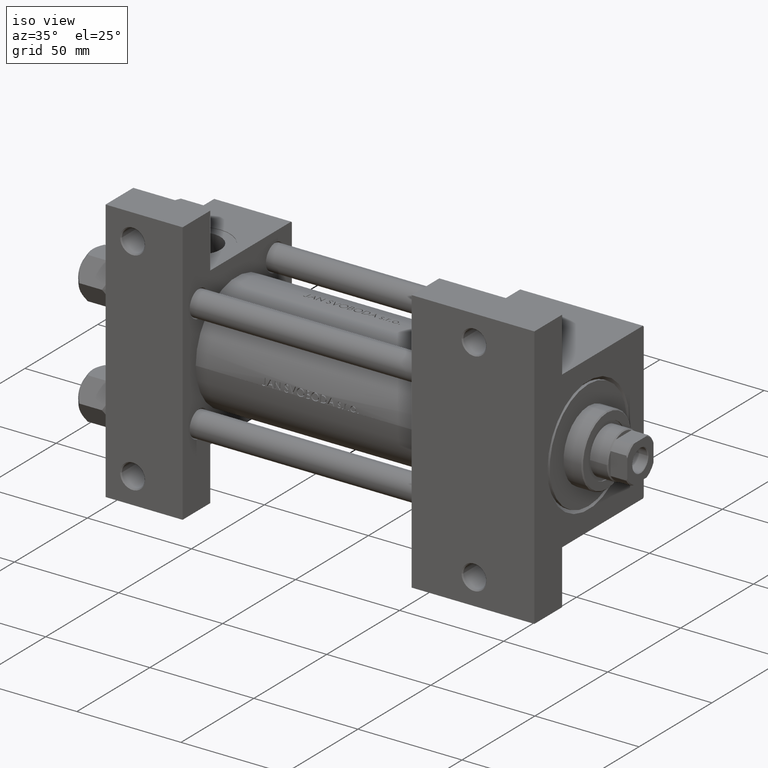
[diagram: clean part render]
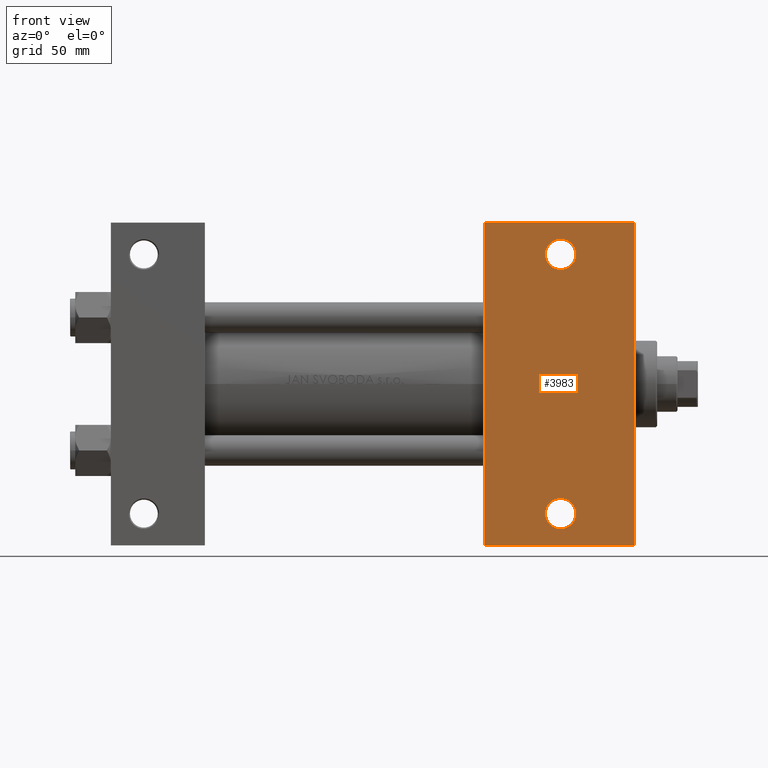
[diagram: tour spotlight — one face highlighted and labeled with its STEP entity id]
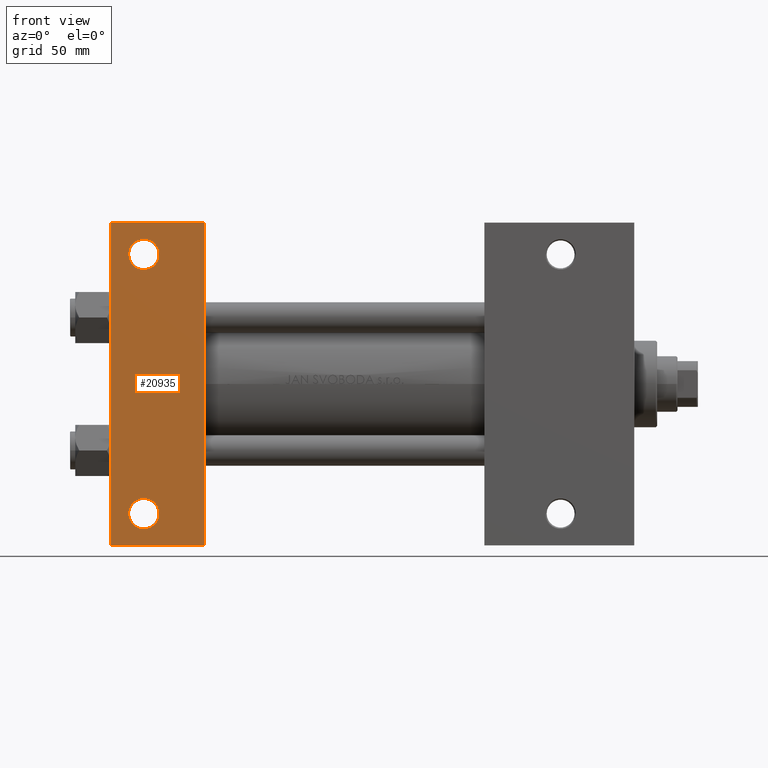
[diagram: tour spotlight — one face highlighted and labeled with its STEP entity id]
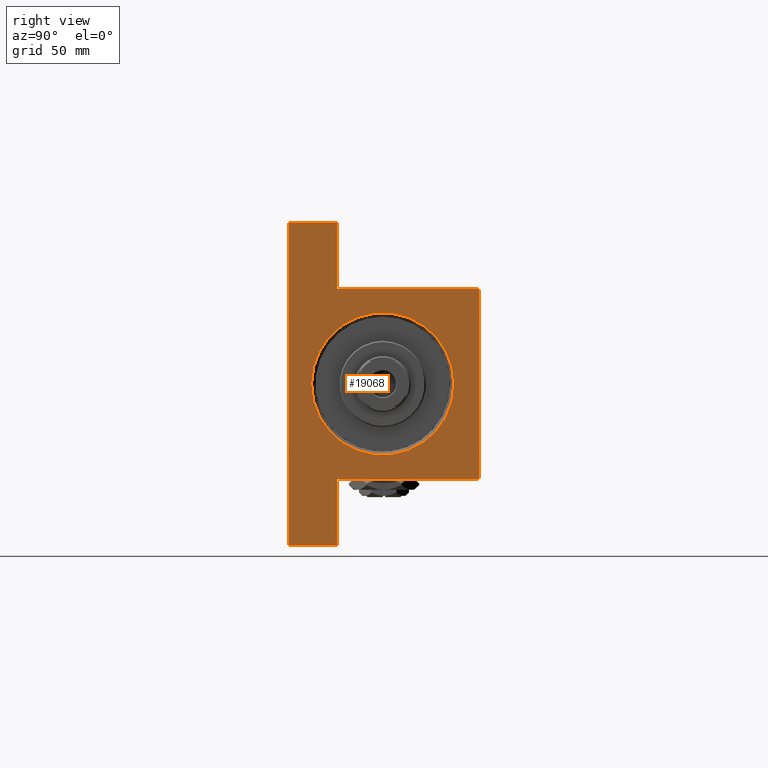
[diagram: tour spotlight — one face highlighted and labeled with its STEP entity id]
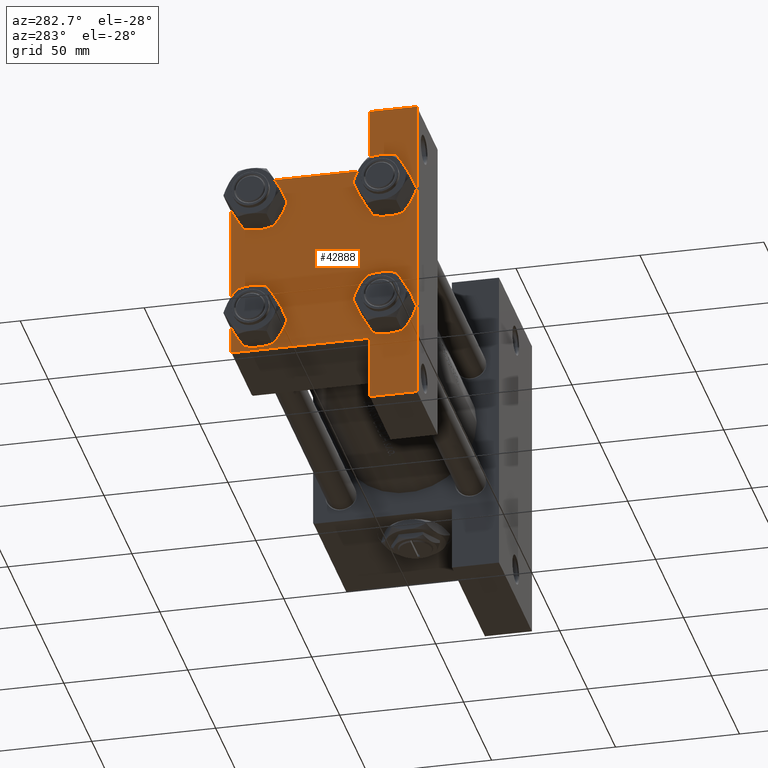
[diagram: tour spotlight — one face highlighted and labeled with its STEP entity id]
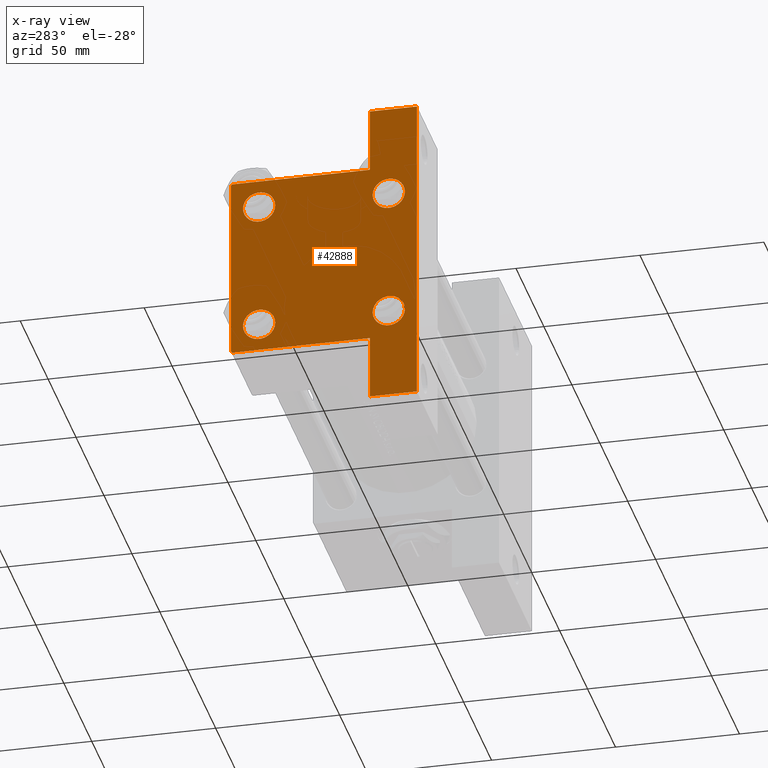
[diagram: x-ray of the same camera — body ghosted, this tour face saturated]
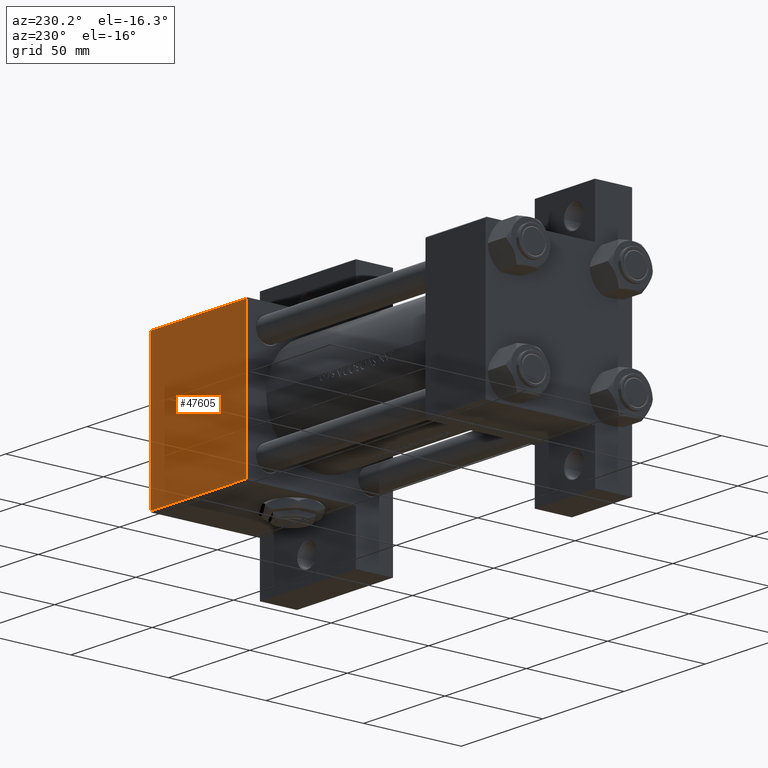
[diagram: tour spotlight — one face highlighted and labeled with its STEP entity id]
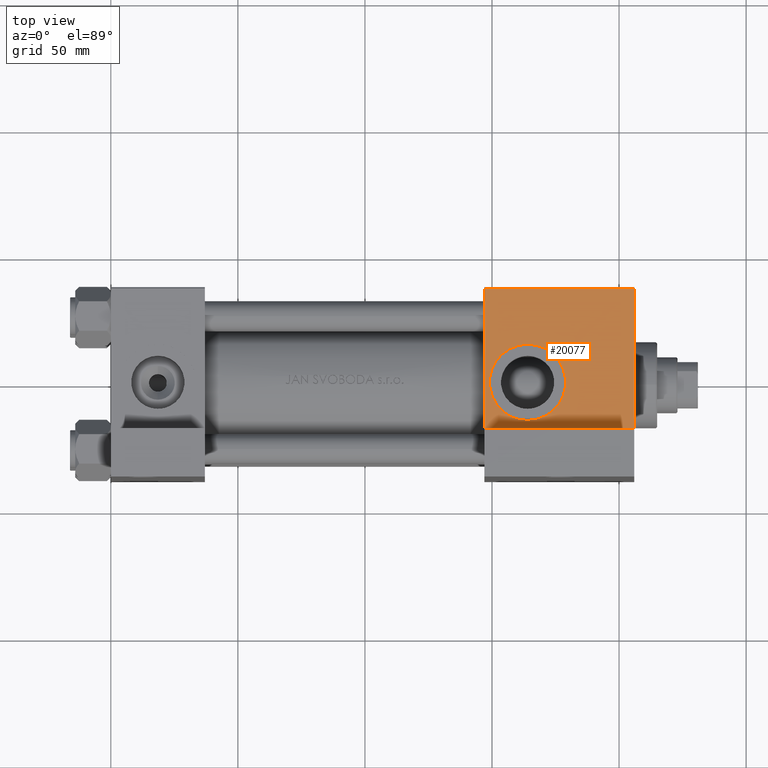
[diagram: tour spotlight — one face highlighted and labeled with its STEP entity id]
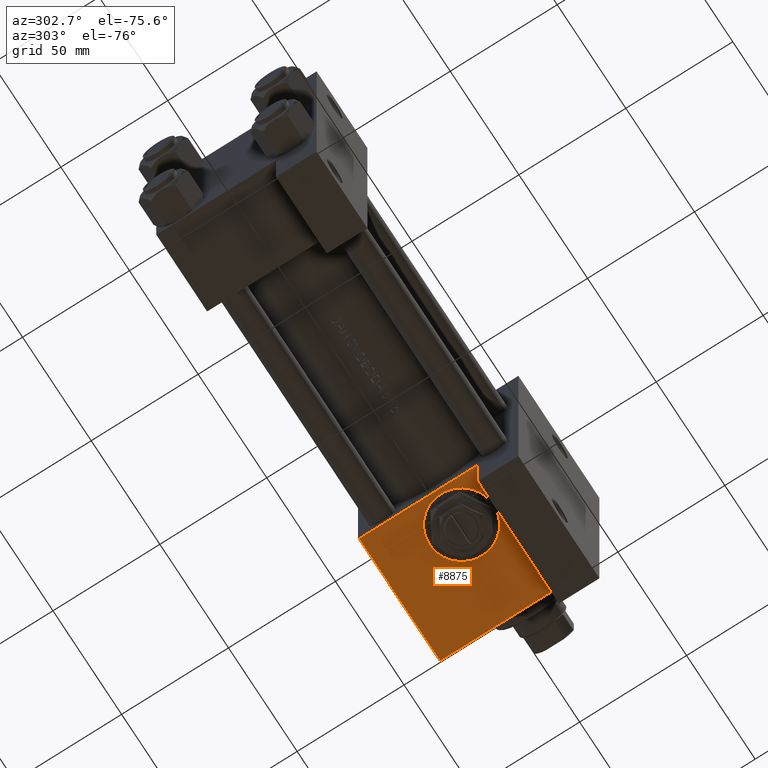
[diagram: tour spotlight — one face highlighted and labeled with its STEP entity id]
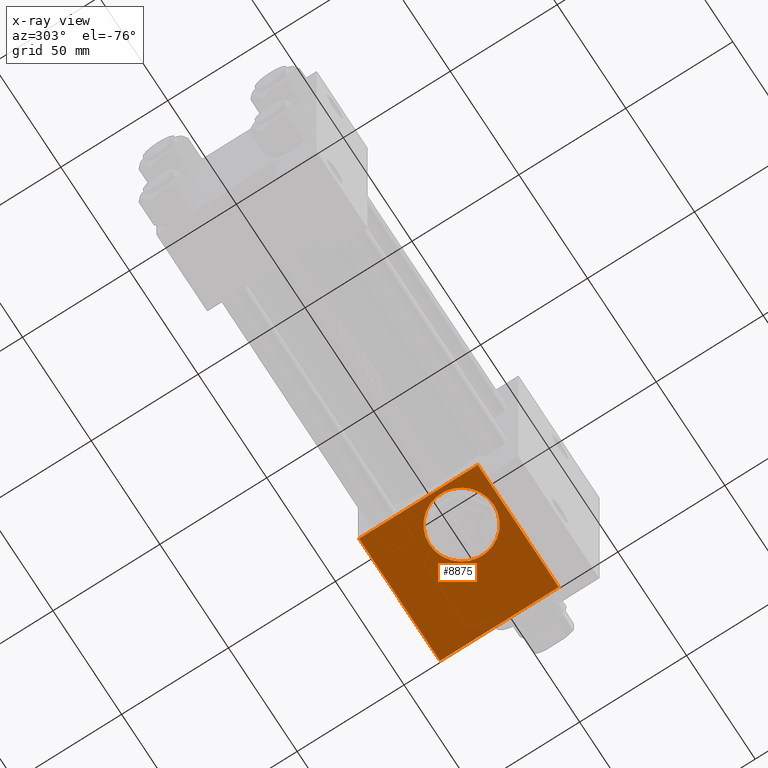
[diagram: x-ray of the same camera — body ghosted, this tour face saturated]
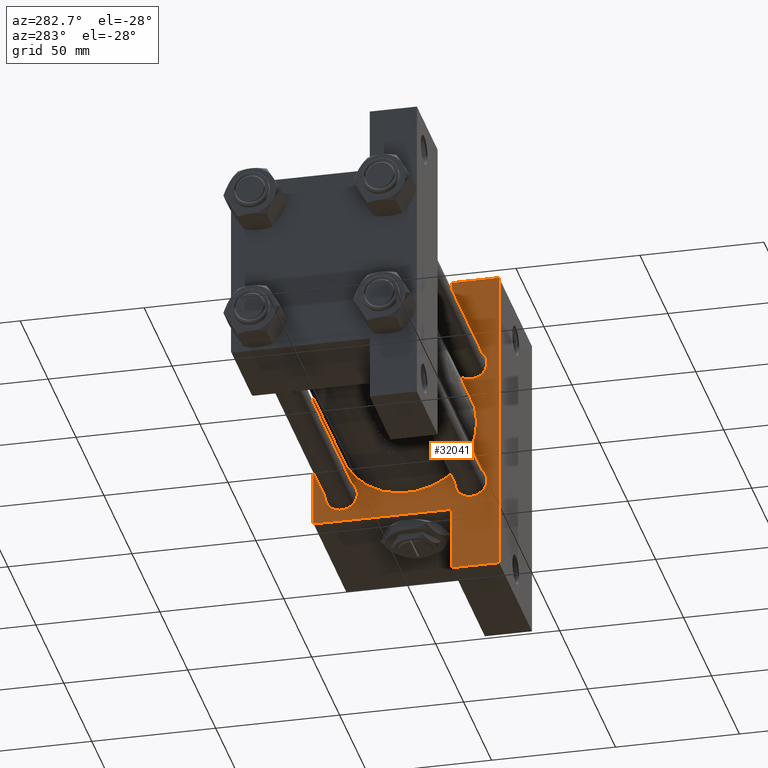
[diagram: tour spotlight — one face highlighted and labeled with its STEP entity id]
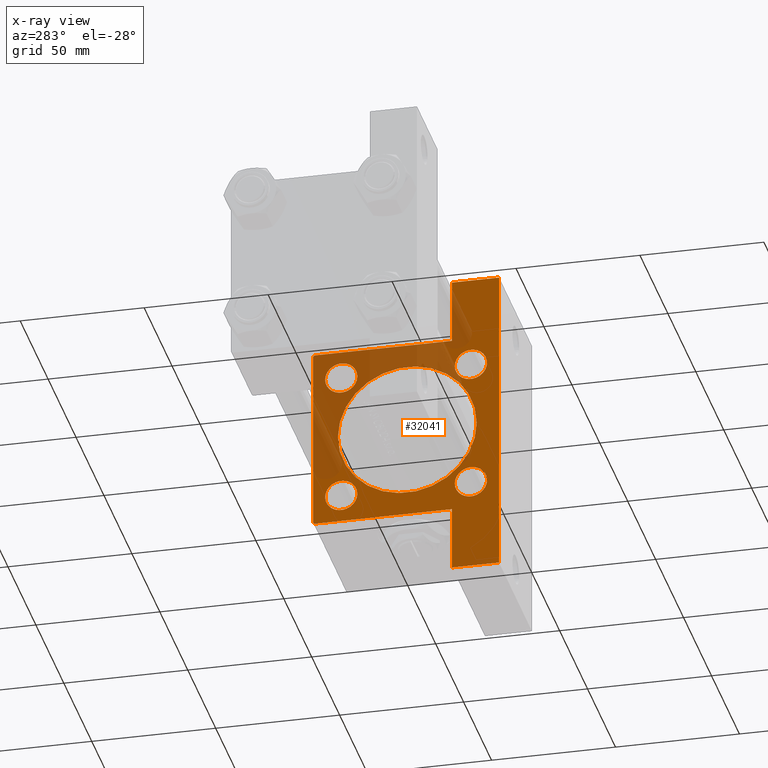
[diagram: x-ray of the same camera — body ghosted, this tour face saturated]
A machine part: a face-by-face anatomy tour. The part has 1134 B-rep faces; the first image is the clean iso view, then the 8 largest visible faces are spotlighted one at a time (largest first), each with its STEP entity span.

Face 1 — front view, entity #3983. In plain terms, the highlighted planar face has unit normal (0, -1, 0).
Definition (entity closure, byte-faithful):
#42 = VECTOR ( 'NONE', #22153, 1000.000000000000000 ) ;
#93 = EDGE_CURVE ( 'NONE', #6645, #761, #1153, .T. ) ;
#761 = VERTEX_POINT ( 'NONE', #33331 ) ;
#911 = DIRECTION ( 'NONE',  ( 1.000000000000000000, 4.704334850106593822E-16, 0.000000000000000000 ) ) ;
#1153 = LINE ( 'NONE', #39041, #36963 ) ;
#2066 = ORIENTED_EDGE ( 'NONE', *, *, #38340, .T. ) ;
#2979 = DIRECTION ( 'NONE',  ( -0.000000000000000000, -0.000000000000000000, 1.000000000000000000 ) ) ;
#3009 = CARTESIAN_POINT ( 'NONE',  ( 177.0000000000000000, 51.00000000000000000, -37.50000000000000000 ) ) ;
#3344 = CARTESIAN_POINT ( 'NONE',  ( 171.0004999999999598, 51.00000000000000000, -37.50000000000000000 ) ) ;
#3959 = AXIS2_PLACEMENT_3D ( 'NONE', #9484, #2979, #32656 ) ;
#3983 = ADVANCED_FACE ( 'NONE', ( #26618, #14905, #41070 ), #41804, .T. ) ;
#4532 = ORIENTED_EDGE ( 'NONE', *, *, #35325, .T. ) ;
#6645 = VERTEX_POINT ( 'NONE', #36317 ) ;
#7941 = CIRCLE ( 'NONE', #3959, 5.999500000000018929 ) ;
#9484 = CARTESIAN_POINT ( 'NONE',  ( 177.0000000000000000, 51.00000000000000000, -37.50000000000000000 ) ) ;
#9971 = LINE ( 'NONE', #32418, #44511 ) ;
#10452 = DIRECTION ( 'NONE',  ( -1.000000000000000000, 4.704334850106593822E-16, -0.000000000000000000 ) ) ;
#11812 = ORIENTED_EDGE ( 'NONE', *, *, #14759, .T. ) ;
#13172 = CARTESIAN_POINT ( 'NONE',  ( 171.0004999999999598, -50.99999999999999289, -37.50000000000000000 ) ) ;
#14759 = EDGE_CURVE ( 'NONE', #761, #25768, #18116, .T. ) ;
#14905 = FACE_BOUND ( 'NONE', #24886, .T. ) ;
#15070 = VERTEX_POINT ( 'NONE', #3344 ) ;
#17772 = CARTESIAN_POINT ( 'NONE',  ( 206.0000000000000284, -63.50000000000002842, -37.50000000000000000 ) ) ;
#18085 = EDGE_CURVE ( 'NONE', #24018, #31772, #33171, .T. ) ;
#18116 = LINE ( 'NONE', #44993, #18767 ) ;
#18177 = DIRECTION ( 'NONE',  ( -1.000000000000000000, 0.000000000000000000, 0.000000000000000000 ) ) ;
#18279 = AXIS2_PLACEMENT_3D ( 'NONE', #22985, #34692, #45390 ) ;
#18362 = DIRECTION ( 'NONE',  ( 0.000000000000000000, -1.000000000000000000, 0.000000000000000000 ) ) ;
#18767 = VECTOR ( 'NONE', #18362, 1000.000000000000000 ) ;
#22039 = AXIS2_PLACEMENT_3D ( 'NONE', #30372, #44575, #18177 ) ;
#22153 = DIRECTION ( 'NONE',  ( 0.000000000000000000, -1.000000000000000000, 0.000000000000000000 ) ) ;
#22174 = ORIENTED_EDGE ( 'NONE', *, *, #18085, .T. ) ;
#22985 = CARTESIAN_POINT ( 'NONE',  ( 177.0000000000000000, -50.99999999999999289, -37.50000000000000000 ) ) ;
#23335 = AXIS2_PLACEMENT_3D ( 'NONE', #3009, #40886, #40408 ) ;
#24018 = VERTEX_POINT ( 'NONE', #13172 ) ;
#24886 = EDGE_LOOP ( 'NONE', ( #22174, #2066 ) ) ;
#25768 = VERTEX_POINT ( 'NONE', #17772 ) ;
#26618 = FACE_BOUND ( 'NONE', #32721, .T. ) ;
#26880 = LINE ( 'NONE', #38335, #42 ) ;
#26983 = EDGE_CURVE ( 'NONE', #6645, #44954, #26880, .T. ) ;
#27550 = AXIS2_PLACEMENT_3D ( 'NONE', #40824, #48527, #30092 ) ;
#29740 = ORIENTED_EDGE ( 'NONE', *, *, #26983, .F. ) ;
#29991 = ORIENTED_EDGE ( 'NONE', *, *, #35364, .T. ) ;
#30092 = DIRECTION ( 'NONE',  ( -1.000000000000000000, 0.000000000000000000, -0.000000000000000000 ) ) ;
#30151 = CARTESIAN_POINT ( 'NONE',  ( 147.0000000000000000, -63.50000000000000000, -37.50000000000000000 ) ) ;
#30372 = CARTESIAN_POINT ( 'NONE',  ( 177.0000000000000000, -50.99999999999999289, -37.50000000000000000 ) ) ;
#31772 = VERTEX_POINT ( 'NONE', #44773 ) ;
#31850 = CARTESIAN_POINT ( 'NONE',  ( 182.9995000000000118, 51.00000000000000000, -37.50000000000000000 ) ) ;
#32418 = CARTESIAN_POINT ( 'NONE',  ( 147.0000000000000000, -63.50000000000000000, -37.50000000000000000 ) ) ;
#32581 = EDGE_LOOP ( 'NONE', ( #29740, #41706, #11812, #29991 ) ) ;
#32656 = DIRECTION ( 'NONE',  ( -1.000000000000000000, 0.000000000000000000, 0.000000000000000000 ) ) ;
#32721 = EDGE_LOOP ( 'NONE', ( #4532, #42995 ) ) ;
#33171 = CIRCLE ( 'NONE', #22039, 5.999500000000018929 ) ;
#33331 = CARTESIAN_POINT ( 'NONE',  ( 206.0000000000000568, 63.50000000000000000, -37.50000000000000000 ) ) ;
#34692 = DIRECTION ( 'NONE',  ( -0.000000000000000000, -0.000000000000000000, 1.000000000000000000 ) ) ;
#35325 = EDGE_CURVE ( 'NONE', #15070, #41338, #7941, .T. ) ;
#35364 = EDGE_CURVE ( 'NONE', #25768, #44954, #9971, .T. ) ;
#36317 = CARTESIAN_POINT ( 'NONE',  ( 147.0000000000000284, 63.49999999999997158, -37.50000000000000000 ) ) ;
#36963 = VECTOR ( 'NONE', #911, 1000.000000000000000 ) ;
#38335 = CARTESIAN_POINT ( 'NONE',  ( 147.0000000000000000, 37.50000000000000000, -37.50000000000000000 ) ) ;
#38340 = EDGE_CURVE ( 'NONE', #31772, #24018, #43740, .T. ) ;
#39041 = CARTESIAN_POINT ( 'NONE',  ( 147.0000000000000284, 63.49999999999997158, -37.50000000000000000 ) ) ;
#40408 = DIRECTION ( 'NONE',  ( -1.000000000000000000, 0.000000000000000000, 0.000000000000000000 ) ) ;
#40824 = CARTESIAN_POINT ( 'NONE',  ( 206.0000000000000000, 37.50000000000000000, -37.50000000000000000 ) ) ;
#40886 = DIRECTION ( 'NONE',  ( -0.000000000000000000, -0.000000000000000000, 1.000000000000000000 ) ) ;
#41070 = FACE_OUTER_BOUND ( 'NONE', #32581, .T. ) ;
#41338 = VERTEX_POINT ( 'NONE', #31850 ) ;
#41634 = CIRCLE ( 'NONE', #23335, 5.999500000000018929 ) ;
#41706 = ORIENTED_EDGE ( 'NONE', *, *, #93, .T. ) ;
#41804 = PLANE ( 'NONE',  #27550 ) ;
#42995 = ORIENTED_EDGE ( 'NONE', *, *, #47991, .T. ) ;
#43740 = CIRCLE ( 'NONE', #18279, 5.999500000000018929 ) ;
#44511 = VECTOR ( 'NONE', #10452, 1000.000000000000000 ) ;
#44575 = DIRECTION ( 'NONE',  ( -0.000000000000000000, -0.000000000000000000, 1.000000000000000000 ) ) ;
#44773 = CARTESIAN_POINT ( 'NONE',  ( 182.9995000000000118, -50.99999999999999289, -37.50000000000000000 ) ) ;
#44954 = VERTEX_POINT ( 'NONE', #30151 ) ;
#44993 = CARTESIAN_POINT ( 'NONE',  ( 206.0000000000000000, 37.50000000000000000, -37.50000000000000000 ) ) ;
#45390 = DIRECTION ( 'NONE',  ( -1.000000000000000000, 0.000000000000000000, 0.000000000000000000 ) ) ;
#47991 = EDGE_CURVE ( 'NONE', #41338, #15070, #41634, .T. ) ;
#48527 = DIRECTION ( 'NONE',  ( 0.000000000000000000, 0.000000000000000000, -1.000000000000000000 ) ) ;

Face 2 — front view, entity #20935. In plain terms, the highlighted planar face has unit normal (0, -1, -0).
Definition (entity closure, byte-faithful):
#356 = AXIS2_PLACEMENT_3D ( 'NONE', #46067, #11205, #19931 ) ;
#590 = EDGE_CURVE ( 'NONE', #30485, #29646, #29795, .T. ) ;
#1258 = ORIENTED_EDGE ( 'NONE', *, *, #30390, .T. ) ;
#2328 = CARTESIAN_POINT ( 'NONE',  ( 1.595073532467135441E-14, 63.50000000000000000, -37.50000000000002132 ) ) ;
#4263 = VECTOR ( 'NONE', #35329, 1000.000000000000000 ) ;
#5168 = ORIENTED_EDGE ( 'NONE', *, *, #25210, .T. ) ;
#6547 = EDGE_CURVE ( 'NONE', #43651, #11891, #8420, .T. ) ;
#7012 = ORIENTED_EDGE ( 'NONE', *, *, #43195, .T. ) ;
#7633 = PLANE ( 'NONE',  #22929 ) ;
#8420 = LINE ( 'NONE', #23629, #4263 ) ;
#8888 = CARTESIAN_POINT ( 'NONE',  ( 12.99999999999999822, -51.00000000000000711, -37.50000000000000711 ) ) ;
#9246 = CARTESIAN_POINT ( 'NONE',  ( 12.99999999999999822, -51.00000000000000711, -37.50000000000000711 ) ) ;
#10391 = CARTESIAN_POINT ( 'NONE',  ( 1.595073532467135441E-14, 63.50000000000000000, -37.50000000000002132 ) ) ;
#11205 = DIRECTION ( 'NONE',  ( -0.000000000000000000, -9.251858538542972814E-17, 1.000000000000000000 ) ) ;
#11497 = LINE ( 'NONE', #35173, #42930 ) ;
#11891 = VERTEX_POINT ( 'NONE', #14773 ) ;
#12197 = VECTOR ( 'NONE', #25764, 1000.000000000000000 ) ;
#12358 = EDGE_LOOP ( 'NONE', ( #1258, #5168 ) ) ;
#12704 = CARTESIAN_POINT ( 'NONE',  ( 37.00000000000001421, 63.50000000000000000, -37.50000000000002132 ) ) ;
#13510 = AXIS2_PLACEMENT_3D ( 'NONE', #8888, #20363, #46746 ) ;
#13574 = CIRCLE ( 'NONE', #19152, 5.999500000000018929 ) ;
#14773 = CARTESIAN_POINT ( 'NONE',  ( 3.977209754999747208E-16, -63.50000000000000000, -37.49999999999999289 ) ) ;
#17086 = DIRECTION ( 'NONE',  ( 0.000000000000000000, 9.251858538542972814E-17, -1.000000000000000000 ) ) ;
#18775 = CARTESIAN_POINT ( 'NONE',  ( 3.977209754999747208E-16, -63.50000000000000000, -37.49999999999999289 ) ) ;
#19152 = AXIS2_PLACEMENT_3D ( 'NONE', #9246, #24462, #20474 ) ;
#19931 = DIRECTION ( 'NONE',  ( 0.000000000000000000, 1.000000000000000000, 0.000000000000000000 ) ) ;
#20363 = DIRECTION ( 'NONE',  ( -0.000000000000000000, -9.251858538542972814E-17, 1.000000000000000000 ) ) ;
#20474 = DIRECTION ( 'NONE',  ( 0.000000000000000000, 1.000000000000000000, 0.000000000000000000 ) ) ;
#20935 = ADVANCED_FACE ( 'NONE', ( #45490, #26573, #41759 ), #7633, .T. ) ;
#21747 = EDGE_CURVE ( 'NONE', #43651, #45015, #44512, .T. ) ;
#22929 = AXIS2_PLACEMENT_3D ( 'NONE', #47213, #17086, #47464 ) ;
#23629 = CARTESIAN_POINT ( 'NONE',  ( 0.000000000000000000, 37.49999999999999289, -37.50000000000000000 ) ) ;
#24080 = CARTESIAN_POINT ( 'NONE',  ( 7.000499999999979295, 50.99999999999998579, -37.50000000000000000 ) ) ;
#24462 = DIRECTION ( 'NONE',  ( -0.000000000000000000, -9.251858538542972814E-17, 1.000000000000000000 ) ) ;
#24748 = EDGE_LOOP ( 'NONE', ( #7012, #47068 ) ) ;
#25210 = EDGE_CURVE ( 'NONE', #47117, #40574, #38970, .T. ) ;
#25606 = DIRECTION ( 'NONE',  ( 1.000000000000000000, 0.000000000000000000, 0.000000000000000000 ) ) ;
#25764 = DIRECTION ( 'NONE',  ( -1.000000000000000000, -0.000000000000000000, -0.000000000000000000 ) ) ;
#25828 = CARTESIAN_POINT ( 'NONE',  ( 7.000499999999979295, -51.00000000000000711, -37.50000000000000711 ) ) ;
#26004 = LINE ( 'NONE', #18775, #12197 ) ;
#26573 = FACE_BOUND ( 'NONE', #12358, .T. ) ;
#27484 = ORIENTED_EDGE ( 'NONE', *, *, #28503, .T. ) ;
#28503 = EDGE_CURVE ( 'NONE', #45015, #39151, #11497, .T. ) ;
#28599 = ORIENTED_EDGE ( 'NONE', *, *, #21747, .T. ) ;
#29165 = CARTESIAN_POINT ( 'NONE',  ( 18.99950000000001538, 50.99999999999998579, -37.50000000000000000 ) ) ;
#29405 = DIRECTION ( 'NONE',  ( -0.000000000000000000, -9.251858538542972814E-17, 1.000000000000000000 ) ) ;
#29646 = VERTEX_POINT ( 'NONE', #24080 ) ;
#29795 = CIRCLE ( 'NONE', #356, 5.999500000000018929 ) ;
#30390 = EDGE_CURVE ( 'NONE', #40574, #47117, #13574, .T. ) ;
#30485 = VERTEX_POINT ( 'NONE', #29165 ) ;
#32500 = VECTOR ( 'NONE', #25606, 1000.000000000000000 ) ;
#33256 = EDGE_CURVE ( 'NONE', #39151, #11891, #26004, .T. ) ;
#35173 = CARTESIAN_POINT ( 'NONE',  ( 37.00000000000000000, 37.49999999999999289, -37.50000000000000000 ) ) ;
#35329 = DIRECTION ( 'NONE',  ( 0.000000000000000000, -1.000000000000000000, -9.251858538542972814E-17 ) ) ;
#36072 = ORIENTED_EDGE ( 'NONE', *, *, #33256, .T. ) ;
#36490 = CARTESIAN_POINT ( 'NONE',  ( 37.00000000000000000, -63.50000000000000000, -37.49999999999999289 ) ) ;
#36654 = CARTESIAN_POINT ( 'NONE',  ( 12.99999999999999822, 50.99999999999998579, -37.50000000000000000 ) ) ;
#38970 = CIRCLE ( 'NONE', #13510, 5.999500000000018929 ) ;
#39151 = VERTEX_POINT ( 'NONE', #36490 ) ;
#40499 = EDGE_LOOP ( 'NONE', ( #49252, #28599, #27484, #36072 ) ) ;
#40574 = VERTEX_POINT ( 'NONE', #25828 ) ;
#41759 = FACE_OUTER_BOUND ( 'NONE', #40499, .T. ) ;
#42930 = VECTOR ( 'NONE', #46113, 1000.000000000000000 ) ;
#43195 = EDGE_CURVE ( 'NONE', #29646, #30485, #46266, .T. ) ;
#43651 = VERTEX_POINT ( 'NONE', #2328 ) ;
#44512 = LINE ( 'NONE', #10391, #32500 ) ;
#45015 = VERTEX_POINT ( 'NONE', #12704 ) ;
#45490 = FACE_BOUND ( 'NONE', #24748, .T. ) ;
#46067 = CARTESIAN_POINT ( 'NONE',  ( 12.99999999999999822, 50.99999999999998579, -37.50000000000000000 ) ) ;
#46113 = DIRECTION ( 'NONE',  ( 0.000000000000000000, -1.000000000000000000, -9.251858538542972814E-17 ) ) ;
#46266 = CIRCLE ( 'NONE', #47051, 5.999500000000018929 ) ;
#46746 = DIRECTION ( 'NONE',  ( 0.000000000000000000, 1.000000000000000000, 0.000000000000000000 ) ) ;
#47051 = AXIS2_PLACEMENT_3D ( 'NONE', #36654, #29405, #48325 ) ;
#47068 = ORIENTED_EDGE ( 'NONE', *, *, #590, .T. ) ;
#47117 = VERTEX_POINT ( 'NONE', #48277 ) ;
#47213 = CARTESIAN_POINT ( 'NONE',  ( 37.00000000000000000, 37.49999999999999289, -37.50000000000000000 ) ) ;
#47464 = DIRECTION ( 'NONE',  ( 0.000000000000000000, 1.000000000000000000, 9.251858538542972814E-17 ) ) ;
#48277 = CARTESIAN_POINT ( 'NONE',  ( 18.99950000000001538, -51.00000000000000711, -37.50000000000000711 ) ) ;
#48325 = DIRECTION ( 'NONE',  ( 0.000000000000000000, 1.000000000000000000, 0.000000000000000000 ) ) ;
#49252 = ORIENTED_EDGE ( 'NONE', *, *, #6547, .F. ) ;

Face 3 — right view, entity #19068. In plain terms, the highlighted planar face has unit normal (-1, 0, 0).
Definition (entity closure, byte-faithful):
#54 = CARTESIAN_POINT ( 'NONE',  ( 206.0000000000000000, 0.000000000000000000, -0.5000000000000004441 ) ) ;
#761 = VERTEX_POINT ( 'NONE', #33331 ) ;
#1125 = VERTEX_POINT ( 'NONE', #32551 ) ;
#1408 = FACE_BOUND ( 'NONE', #42690, .T. ) ;
#1830 = EDGE_CURVE ( 'NONE', #46504, #761, #30088, .T. ) ;
#2813 = CARTESIAN_POINT ( 'NONE',  ( 206.0000000000000000, -37.50000000000000000, 37.49999999999997868 ) ) ;
#3359 = DIRECTION ( 'NONE',  ( 0.000000000000000000, 0.000000000000000000, -1.000000000000000000 ) ) ;
#3433 = CARTESIAN_POINT ( 'NONE',  ( 206.0000000000000000, 36.99999999999997158, 37.49999999999999289 ) ) ;
#4697 = VECTOR ( 'NONE', #14005, 1000.000000000000000 ) ;
#5231 = VERTEX_POINT ( 'NONE', #39911 ) ;
#5565 = LINE ( 'NONE', #48115, #4697 ) ;
#7079 = CARTESIAN_POINT ( 'NONE',  ( 206.0000000000000000, 37.50000000000000000, 37.49999999999999289 ) ) ;
#7530 = DIRECTION ( 'NONE',  ( -1.000000000000000000, -0.000000000000000000, 0.000000000000000000 ) ) ;
#8158 = ORIENTED_EDGE ( 'NONE', *, *, #31278, .T. ) ;
#8266 = ORIENTED_EDGE ( 'NONE', *, *, #1830, .F. ) ;
#8713 = CARTESIAN_POINT ( 'NONE',  ( 206.0000000000000000, -37.50000000000000000, 36.99999999999995026 ) ) ;
#10697 = ORIENTED_EDGE ( 'NONE', *, *, #40851, .T. ) ;
#10875 = EDGE_CURVE ( 'NONE', #35852, #25768, #33265, .T. ) ;
#11361 = VERTEX_POINT ( 'NONE', #3433 ) ;
#11525 = VECTOR ( 'NONE', #45273, 1000.000000000000000 ) ;
#11632 = LINE ( 'NONE', #29815, #19833 ) ;
#12623 = PLANE ( 'NONE',  #34018 ) ;
#12724 = CARTESIAN_POINT ( 'NONE',  ( 206.0000000000000000, 37.50000000000000000, 36.99999999999999289 ) ) ;
#12907 = ORIENTED_EDGE ( 'NONE', *, *, #23144, .T. ) ;
#13158 = VERTEX_POINT ( 'NONE', #19960 ) ;
#14005 = DIRECTION ( 'NONE',  ( -1.067522139062650277E-15, -1.000000000000000000, 0.000000000000000000 ) ) ;
#14759 = EDGE_CURVE ( 'NONE', #761, #25768, #18116, .T. ) ;
#15617 = DIRECTION ( 'NONE',  ( -0.000000000000000000, -1.000000000000000000, -0.000000000000000000 ) ) ;
#15870 = DIRECTION ( 'NONE',  ( -1.000000000000000000, -0.000000000000000000, 0.000000000000000000 ) ) ;
#16687 = EDGE_LOOP ( 'NONE', ( #39663, #10697, #26768, #41624, #25620, #19693, #30065, #48236, #8266, #12907 ) ) ;
#16986 = DIRECTION ( 'NONE',  ( -1.000000000000000000, -0.000000000000000000, 0.000000000000000000 ) ) ;
#17588 = AXIS2_PLACEMENT_3D ( 'NONE', #47598, #16986, #35678 ) ;
#17772 = CARTESIAN_POINT ( 'NONE',  ( 206.0000000000000284, -63.50000000000002842, -37.50000000000000000 ) ) ;
#17820 = DIRECTION ( 'NONE',  ( 0.000000000000000000, -1.000000000000000000, -1.850371707708594316E-16 ) ) ;
#18016 = DIRECTION ( 'NONE',  ( 0.000000000000000000, -9.251858538542972814E-17, -1.000000000000000000 ) ) ;
#18116 = LINE ( 'NONE', #44993, #18767 ) ;
#18362 = DIRECTION ( 'NONE',  ( 0.000000000000000000, -1.000000000000000000, 0.000000000000000000 ) ) ;
#18767 = VECTOR ( 'NONE', #18362, 1000.000000000000000 ) ;
#19068 = ADVANCED_FACE ( 'NONE', ( #1408, #31568 ), #12623, .F. ) ;
#19693 = ORIENTED_EDGE ( 'NONE', *, *, #24200, .T. ) ;
#19833 = VECTOR ( 'NONE', #15617, 1000.000000000000000 ) ;
#19897 = VECTOR ( 'NONE', #37370, 1000.000000000000000 ) ;
#19960 = CARTESIAN_POINT ( 'NONE',  ( 206.0000000000000000, -37.50000000000000711, -18.50000000000000355 ) ) ;
#19963 = VERTEX_POINT ( 'NONE', #8713 ) ;
#22136 = CARTESIAN_POINT ( 'NONE',  ( 206.0000000000000568, 63.50000000000000000, -18.50000000000000000 ) ) ;
#22144 = EDGE_CURVE ( 'NONE', #11361, #5231, #41215, .T. ) ;
#23144 = EDGE_CURVE ( 'NONE', #46504, #35403, #5565, .T. ) ;
#23846 = VECTOR ( 'NONE', #18016, 1000.000000000000000 ) ;
#24042 = CARTESIAN_POINT ( 'NONE',  ( 206.0000000000000568, 63.50000000000000000, -18.50000000000000000 ) ) ;
#24139 = EDGE_CURVE ( 'NONE', #34486, #35403, #47531, .T. ) ;
#24200 = EDGE_CURVE ( 'NONE', #13158, #35852, #11632, .T. ) ;
#24266 = VERTEX_POINT ( 'NONE', #37544 ) ;
#25620 = ORIENTED_EDGE ( 'NONE', *, *, #38189, .T. ) ;
#25768 = VERTEX_POINT ( 'NONE', #17772 ) ;
#25770 = LINE ( 'NONE', #30232, #36648 ) ;
#26012 = DIRECTION ( 'NONE',  ( 0.000000000000000000, -0.7071067811865672237, 0.7071067811865279218 ) ) ;
#26117 = ORIENTED_EDGE ( 'NONE', *, *, #43849, .T. ) ;
#26477 = DIRECTION ( 'NONE',  ( 0.000000000000000000, 0.000000000000000000, 1.000000000000000000 ) ) ;
#26768 = ORIENTED_EDGE ( 'NONE', *, *, #22144, .T. ) ;
#27833 = CARTESIAN_POINT ( 'NONE',  ( 206.0000000000000000, 0.000000000000000000, 0.000000000000000000 ) ) ;
#29815 = CARTESIAN_POINT ( 'NONE',  ( 206.0000000000000284, -63.50000000000002842, -18.50000000000000000 ) ) ;
#30065 = ORIENTED_EDGE ( 'NONE', *, *, #10875, .T. ) ;
#30088 = LINE ( 'NONE', #22136, #11525 ) ;
#30232 = CARTESIAN_POINT ( 'NONE',  ( 206.0000000000000000, 36.99999999999997158, 37.49999999999999289 ) ) ;
#31278 = EDGE_CURVE ( 'NONE', #1125, #24266, #39077, .T. ) ;
#31568 = FACE_OUTER_BOUND ( 'NONE', #16687, .T. ) ;
#31991 = CIRCLE ( 'NONE', #37552, 28.00000000000005329 ) ;
#32551 = CARTESIAN_POINT ( 'NONE',  ( 206.0000000000000000, 0.000000000000000000, -28.50000000000005329 ) ) ;
#33265 = LINE ( 'NONE', #37491, #37831 ) ;
#33331 = CARTESIAN_POINT ( 'NONE',  ( 206.0000000000000568, 63.50000000000000000, -37.50000000000000000 ) ) ;
#34018 = AXIS2_PLACEMENT_3D ( 'NONE', #27833, #15870, #46249 ) ;
#34486 = VERTEX_POINT ( 'NONE', #12724 ) ;
#35403 = VERTEX_POINT ( 'NONE', #43609 ) ;
#35678 = DIRECTION ( 'NONE',  ( 0.000000000000000000, 0.000000000000000000, 1.000000000000000000 ) ) ;
#35852 = VERTEX_POINT ( 'NONE', #42758 ) ;
#36648 = VECTOR ( 'NONE', #26012, 1000.000000000000000 ) ;
#36953 = LINE ( 'NONE', #2813, #23846 ) ;
#37061 = CARTESIAN_POINT ( 'NONE',  ( 206.0000000000000000, 37.50000000000000000, 37.49999999999999289 ) ) ;
#37247 = VECTOR ( 'NONE', #17820, 1000.000000000000000 ) ;
#37370 = DIRECTION ( 'NONE',  ( -0.000000000000000000, -0.7071067811865279218, -0.7071067811865672237 ) ) ;
#37491 = CARTESIAN_POINT ( 'NONE',  ( 206.0000000000000284, -63.50000000000002842, -18.50000000000000000 ) ) ;
#37544 = CARTESIAN_POINT ( 'NONE',  ( 206.0000000000000000, 3.429011037612595587E-15, 27.50000000000005329 ) ) ;
#37552 = AXIS2_PLACEMENT_3D ( 'NONE', #54, #7530, #26477 ) ;
#37824 = EDGE_CURVE ( 'NONE', #5231, #19963, #45324, .T. ) ;
#37831 = VECTOR ( 'NONE', #3359, 1000.000000000000000 ) ;
#38189 = EDGE_CURVE ( 'NONE', #19963, #13158, #36953, .T. ) ;
#39077 = CIRCLE ( 'NONE', #17588, 28.00000000000005329 ) ;
#39663 = ORIENTED_EDGE ( 'NONE', *, *, #24139, .F. ) ;
#39911 = CARTESIAN_POINT ( 'NONE',  ( 206.0000000000000000, -37.00000000000000000, 37.49999999999997868 ) ) ;
#40851 = EDGE_CURVE ( 'NONE', #34486, #11361, #25770, .T. ) ;
#41215 = LINE ( 'NONE', #7079, #37247 ) ;
#41295 = VECTOR ( 'NONE', #48254, 1000.000000000000000 ) ;
#41624 = ORIENTED_EDGE ( 'NONE', *, *, #37824, .T. ) ;
#42690 = EDGE_LOOP ( 'NONE', ( #8158, #26117 ) ) ;
#42758 = CARTESIAN_POINT ( 'NONE',  ( 206.0000000000000284, -63.50000000000002842, -18.50000000000000000 ) ) ;
#43609 = CARTESIAN_POINT ( 'NONE',  ( 206.0000000000000284, 37.49999999999999289, -18.50000000000000000 ) ) ;
#43849 = EDGE_CURVE ( 'NONE', #24266, #1125, #31991, .T. ) ;
#44993 = CARTESIAN_POINT ( 'NONE',  ( 206.0000000000000000, 37.50000000000000000, -37.50000000000000000 ) ) ;
#45273 = DIRECTION ( 'NONE',  ( 0.000000000000000000, 0.000000000000000000, -1.000000000000000000 ) ) ;
#45324 = LINE ( 'NONE', #49057, #19897 ) ;
#46249 = DIRECTION ( 'NONE',  ( 0.000000000000000000, 0.000000000000000000, 1.000000000000000000 ) ) ;
#46504 = VERTEX_POINT ( 'NONE', #24042 ) ;
#47531 = LINE ( 'NONE', #37061, #41295 ) ;
#47598 = CARTESIAN_POINT ( 'NONE',  ( 206.0000000000000000, 0.000000000000000000, -0.5000000000000004441 ) ) ;
#48115 = CARTESIAN_POINT ( 'NONE',  ( 206.0000000000000568, 63.50000000000000000, -18.50000000000000000 ) ) ;
#48236 = ORIENTED_EDGE ( 'NONE', *, *, #14759, .F. ) ;
#48254 = DIRECTION ( 'NONE',  ( 0.000000000000000000, 0.000000000000000000, -1.000000000000000000 ) ) ;
#49057 = CARTESIAN_POINT ( 'NONE',  ( 206.0000000000000000, -37.50000000000000000, 36.99999999999995026 ) ) ;

Face 4 — auxiliary view, entity #42888. An x-ray twin of the same camera follows (body ghosted, this face saturated) — the face is partly hidden behind the body. In plain terms, the highlighted planar face has unit normal (-1, 0, -0).
Definition (entity closure, byte-faithful):
#14 = EDGE_CURVE ( 'NONE', #20537, #11891, #7150, .T. ) ;
#455 = CARTESIAN_POINT ( 'NONE',  ( 0.000000000000000000, 36.99999999999999289, 37.50000000000000000 ) ) ;
#961 = VECTOR ( 'NONE', #24172, 1000.000000000000000 ) ;
#977 = CARTESIAN_POINT ( 'NONE',  ( 0.000000000000000000, 37.49999999999999289, 37.50000000000000000 ) ) ;
#1147 = DIRECTION ( 'NONE',  ( 0.000000000000000000, 0.000000000000000000, 1.000000000000000000 ) ) ;
#1208 = FACE_BOUND ( 'NONE', #20981, .T. ) ;
#1272 = CIRCLE ( 'NONE', #3649, 6.500000000000015987 ) ;
#1437 = ORIENTED_EDGE ( 'NONE', *, *, #19574, .T. ) ;
#1455 = DIRECTION ( 'NONE',  ( -0.000000000000000000, 0.000000000000000000, 1.000000000000000000 ) ) ;
#1655 = DIRECTION ( 'NONE',  ( 0.000000000000000000, -1.734723475976806848E-16, -1.000000000000000000 ) ) ;
#1705 = FACE_OUTER_BOUND ( 'NONE', #22014, .T. ) ;
#1954 = PLANE ( 'NONE',  #44649 ) ;
#2060 = EDGE_CURVE ( 'NONE', #8351, #38722, #42826, .T. ) ;
#2328 = CARTESIAN_POINT ( 'NONE',  ( 1.595073532467135441E-14, 63.50000000000000000, -37.50000000000002132 ) ) ;
#2861 = ORIENTED_EDGE ( 'NONE', *, *, #11978, .T. ) ;
#3156 = CARTESIAN_POINT ( 'NONE',  ( 0.000000000000000000, -26.14999999999999147, 32.65000000000003411 ) ) ;
#3649 = AXIS2_PLACEMENT_3D ( 'NONE', #45839, #11467, #41362 ) ;
#4216 = EDGE_LOOP ( 'NONE', ( #9208, #42335 ) ) ;
#4263 = VECTOR ( 'NONE', #35329, 1000.000000000000000 ) ;
#4460 = CARTESIAN_POINT ( 'NONE',  ( 3.977209754999747208E-16, -63.50000000000000000, -18.50000000000000355 ) ) ;
#5306 = CARTESIAN_POINT ( 'NONE',  ( 1.595073532467135441E-14, 63.50000000000001421, 26.72167621838005047 ) ) ;
#5773 = EDGE_CURVE ( 'NONE', #38918, #40602, #40085, .T. ) ;
#5911 = DIRECTION ( 'NONE',  ( 0.000000000000000000, 0.000000000000000000, 1.000000000000000000 ) ) ;
#6219 = ORIENTED_EDGE ( 'NONE', *, *, #24362, .F. ) ;
#6547 = EDGE_CURVE ( 'NONE', #43651, #11891, #8420, .T. ) ;
#6873 = CIRCLE ( 'NONE', #38723, 6.500000000000023093 ) ;
#7150 = LINE ( 'NONE', #18621, #26620 ) ;
#7240 = EDGE_CURVE ( 'NONE', #26641, #17183, #16259, .T. ) ;
#7572 = VECTOR ( 'NONE', #19928, 1000.000000000000000 ) ;
#7589 = CARTESIAN_POINT ( 'NONE',  ( 0.000000000000000000, 37.49999999999999289, -18.49999999999999645 ) ) ;
#7770 = VECTOR ( 'NONE', #46380, 1000.000000000000000 ) ;
#7799 = ORIENTED_EDGE ( 'NONE', *, *, #21966, .T. ) ;
#8211 = ORIENTED_EDGE ( 'NONE', *, *, #44361, .F. ) ;
#8351 = VERTEX_POINT ( 'NONE', #455 ) ;
#8420 = LINE ( 'NONE', #23629, #4263 ) ;
#8425 = CIRCLE ( 'NONE', #47385, 6.500000000000023093 ) ;
#8632 = CARTESIAN_POINT ( 'NONE',  ( 0.000000000000000000, -37.50000000000000711, 37.49999999999999289 ) ) ;
#8696 = VECTOR ( 'NONE', #31800, 1000.000000000000000 ) ;
#9208 = ORIENTED_EDGE ( 'NONE', *, *, #5773, .T. ) ;
#10438 = VERTEX_POINT ( 'NONE', #42087 ) ;
#10819 = CARTESIAN_POINT ( 'NONE',  ( 1.595073532467135441E-14, 63.50000000000000000, -18.50000000000000355 ) ) ;
#11021 = ORIENTED_EDGE ( 'NONE', *, *, #7240, .T. ) ;
#11153 = ORIENTED_EDGE ( 'NONE', *, *, #17477, .T. ) ;
#11245 = LINE ( 'NONE', #11492, #15644 ) ;
#11467 = DIRECTION ( 'NONE',  ( 1.000000000000000000, -0.000000000000000000, 0.000000000000000000 ) ) ;
#11492 = CARTESIAN_POINT ( 'NONE',  ( 0.000000000000000000, 37.24999999999999289, 37.24999999999999289 ) ) ;
#11510 = CARTESIAN_POINT ( 'NONE',  ( 0.000000000000000000, -26.14999999999999147, 19.64999999999999147 ) ) ;
#11891 = VERTEX_POINT ( 'NONE', #14773 ) ;
#11927 = AXIS2_PLACEMENT_3D ( 'NONE', #43242, #42992, #27811 ) ;
#11978 = EDGE_CURVE ( 'NONE', #22098, #43651, #13013, .T. ) ;
#12231 = EDGE_CURVE ( 'NONE', #17183, #26641, #1272, .T. ) ;
#12521 = DIRECTION ( 'NONE',  ( 0.000000000000000000, -1.734723475976806848E-16, -1.000000000000000000 ) ) ;
#13013 = LINE ( 'NONE', #5306, #48967 ) ;
#13458 = LINE ( 'NONE', #24687, #15164 ) ;
#14773 = CARTESIAN_POINT ( 'NONE',  ( 3.977209754999747208E-16, -63.50000000000000000, -37.49999999999999289 ) ) ;
#14786 = EDGE_CURVE ( 'NONE', #37571, #28775, #8425, .T. ) ;
#15164 = VECTOR ( 'NONE', #32882, 1000.000000000000000 ) ;
#15644 = VECTOR ( 'NONE', #18481, 1000.000000000000114 ) ;
#16259 = CIRCLE ( 'NONE', #22619, 6.500000000000015987 ) ;
#16419 = DIRECTION ( 'NONE',  ( -1.000000000000000000, 0.000000000000000000, -0.000000000000000000 ) ) ;
#16599 = AXIS2_PLACEMENT_3D ( 'NONE', #23087, #34549, #1147 ) ;
#16660 = FACE_BOUND ( 'NONE', #41892, .T. ) ;
#17154 = CARTESIAN_POINT ( 'NONE',  ( 0.000000000000000000, 0.000000000000000000, 0.000000000000000000 ) ) ;
#17183 = VERTEX_POINT ( 'NONE', #28158 ) ;
#17477 = EDGE_CURVE ( 'NONE', #28775, #37571, #6873, .T. ) ;
#17738 = EDGE_CURVE ( 'NONE', #8351, #24386, #11245, .T. ) ;
#18481 = DIRECTION ( 'NONE',  ( 0.000000000000000000, 0.7071067811865474617, -0.7071067811865474617 ) ) ;
#18621 = CARTESIAN_POINT ( 'NONE',  ( 3.977209754999747208E-16, -63.49999999999998579, 26.72167621838007889 ) ) ;
#19001 = CARTESIAN_POINT ( 'NONE',  ( 0.000000000000000000, 37.49999999999999289, 37.50000000000000000 ) ) ;
#19223 = EDGE_CURVE ( 'NONE', #45940, #38722, #44712, .T. ) ;
#19224 = VERTEX_POINT ( 'NONE', #7589 ) ;
#19258 = CARTESIAN_POINT ( 'NONE',  ( 0.000000000000000000, -26.14999999999999147, -26.15000000000000924 ) ) ;
#19574 = EDGE_CURVE ( 'NONE', #24386, #19224, #38183, .T. ) ;
#19928 = DIRECTION ( 'NONE',  ( 0.000000000000000000, -1.000000000000000000, -9.251858538542971581E-17 ) ) ;
#20537 = VERTEX_POINT ( 'NONE', #4460 ) ;
#20981 = EDGE_LOOP ( 'NONE', ( #7799, #21873 ) ) ;
#21454 = EDGE_LOOP ( 'NONE', ( #11153, #39086 ) ) ;
#21873 = ORIENTED_EDGE ( 'NONE', *, *, #24182, .T. ) ;
#21966 = EDGE_CURVE ( 'NONE', #34367, #29505, #31712, .T. ) ;
#22014 = EDGE_LOOP ( 'NONE', ( #6219, #39187, #26631, #39514, #1437, #8211, #2861, #48661, #25452, #30164 ) ) ;
#22098 = VERTEX_POINT ( 'NONE', #10819 ) ;
#22619 = AXIS2_PLACEMENT_3D ( 'NONE', #39131, #43348, #47082 ) ;
#23087 = CARTESIAN_POINT ( 'NONE',  ( 0.000000000000000000, 26.14999999999999858, 26.15000000000000213 ) ) ;
#23629 = CARTESIAN_POINT ( 'NONE',  ( 0.000000000000000000, 37.49999999999999289, -37.50000000000000000 ) ) ;
#24172 = DIRECTION ( 'NONE',  ( -2.877097866686192789E-16, -1.000000000000000000, 0.000000000000000000 ) ) ;
#24182 = EDGE_CURVE ( 'NONE', #29505, #34367, #27014, .T. ) ;
#24362 = EDGE_CURVE ( 'NONE', #45940, #10438, #39281, .T. ) ;
#24386 = VERTEX_POINT ( 'NONE', #43252 ) ;
#24687 = CARTESIAN_POINT ( 'NONE',  ( 3.977209754999744250E-16, -63.49999999999998579, -18.50000000000000355 ) ) ;
#24854 = CARTESIAN_POINT ( 'NONE',  ( 0.000000000000000000, -26.14999999999999147, -19.64999999999999503 ) ) ;
#25423 = AXIS2_PLACEMENT_3D ( 'NONE', #41274, #45000, #33805 ) ;
#25452 = ORIENTED_EDGE ( 'NONE', *, *, #14, .F. ) ;
#26620 = VECTOR ( 'NONE', #1655, 1000.000000000000000 ) ;
#26631 = ORIENTED_EDGE ( 'NONE', *, *, #2060, .F. ) ;
#26641 = VERTEX_POINT ( 'NONE', #31715 ) ;
#26923 = EDGE_CURVE ( 'NONE', #10438, #20537, #13458, .T. ) ;
#27014 = CIRCLE ( 'NONE', #25423, 6.500000000000023093 ) ;
#27811 = DIRECTION ( 'NONE',  ( 0.000000000000000000, 0.000000000000000000, 1.000000000000000000 ) ) ;
#28158 = CARTESIAN_POINT ( 'NONE',  ( 0.000000000000000000, 26.14999999999999858, -19.64999999999998792 ) ) ;
#28775 = VERTEX_POINT ( 'NONE', #3156 ) ;
#29505 = VERTEX_POINT ( 'NONE', #45237 ) ;
#29660 = EDGE_CURVE ( 'NONE', #40602, #38918, #33400, .T. ) ;
#30164 = ORIENTED_EDGE ( 'NONE', *, *, #26923, .F. ) ;
#30956 = DIRECTION ( 'NONE',  ( 1.000000000000000000, -0.000000000000000000, 0.000000000000000000 ) ) ;
#31712 = CIRCLE ( 'NONE', #16599, 6.500000000000023093 ) ;
#31715 = CARTESIAN_POINT ( 'NONE',  ( 0.000000000000000000, 26.14999999999999858, -32.65000000000001990 ) ) ;
#31800 = DIRECTION ( 'NONE',  ( 0.000000000000000000, 9.251858538542971581E-17, -1.000000000000000000 ) ) ;
#31833 = CARTESIAN_POINT ( 'NONE',  ( 0.000000000000000000, -26.14999999999999147, 26.15000000000000924 ) ) ;
#32882 = DIRECTION ( 'NONE',  ( 4.278042683914906889E-17, -1.000000000000000000, 0.000000000000000000 ) ) ;
#33400 = CIRCLE ( 'NONE', #11927, 6.500000000000015987 ) ;
#33805 = DIRECTION ( 'NONE',  ( 0.000000000000000000, 0.000000000000000000, 1.000000000000000000 ) ) ;
#34367 = VERTEX_POINT ( 'NONE', #36442 ) ;
#34549 = DIRECTION ( 'NONE',  ( 1.000000000000000000, -0.000000000000000000, 0.000000000000000000 ) ) ;
#35329 = DIRECTION ( 'NONE',  ( 0.000000000000000000, -1.000000000000000000, -9.251858538542972814E-17 ) ) ;
#35853 = FACE_BOUND ( 'NONE', #21454, .T. ) ;
#36097 = FACE_BOUND ( 'NONE', #4216, .T. ) ;
#36114 = AXIS2_PLACEMENT_3D ( 'NONE', #19258, #30956, #45652 ) ;
#36124 = LINE ( 'NONE', #47554, #961 ) ;
#36442 = CARTESIAN_POINT ( 'NONE',  ( 0.000000000000000000, 26.14999999999999858, 32.65000000000002700 ) ) ;
#37251 = DIRECTION ( 'NONE',  ( -0.000000000000000000, 0.7071067811865474617, 0.7071067811865474617 ) ) ;
#37571 = VERTEX_POINT ( 'NONE', #11510 ) ;
#38183 = LINE ( 'NONE', #19001, #7770 ) ;
#38722 = VERTEX_POINT ( 'NONE', #43818 ) ;
#38723 = AXIS2_PLACEMENT_3D ( 'NONE', #31833, #43527, #5911 ) ;
#38918 = VERTEX_POINT ( 'NONE', #24854 ) ;
#39086 = ORIENTED_EDGE ( 'NONE', *, *, #14786, .T. ) ;
#39131 = CARTESIAN_POINT ( 'NONE',  ( 0.000000000000000000, 26.14999999999999858, -26.15000000000000213 ) ) ;
#39187 = ORIENTED_EDGE ( 'NONE', *, *, #19223, .T. ) ;
#39281 = LINE ( 'NONE', #8632, #8696 ) ;
#39501 = CARTESIAN_POINT ( 'NONE',  ( 0.000000000000000000, -37.50000000000000711, 36.99999999999999289 ) ) ;
#39514 = ORIENTED_EDGE ( 'NONE', *, *, #17738, .T. ) ;
#40085 = CIRCLE ( 'NONE', #36114, 6.500000000000015987 ) ;
#40602 = VERTEX_POINT ( 'NONE', #44980 ) ;
#40855 = ORIENTED_EDGE ( 'NONE', *, *, #12231, .T. ) ;
#41274 = CARTESIAN_POINT ( 'NONE',  ( 0.000000000000000000, 26.14999999999999858, 26.15000000000000213 ) ) ;
#41362 = DIRECTION ( 'NONE',  ( 0.000000000000000000, 0.000000000000000000, 1.000000000000000000 ) ) ;
#41892 = EDGE_LOOP ( 'NONE', ( #40855, #11021 ) ) ;
#42087 = CARTESIAN_POINT ( 'NONE',  ( -7.145701223179004046E-16, -37.50000000000000711, -18.50000000000000355 ) ) ;
#42335 = ORIENTED_EDGE ( 'NONE', *, *, #29660, .T. ) ;
#42826 = LINE ( 'NONE', #977, #7572 ) ;
#42888 = ADVANCED_FACE ( 'NONE', ( #35853, #36097, #16660, #1208, #1705 ), #1954, .T. ) ;
#42992 = DIRECTION ( 'NONE',  ( 1.000000000000000000, -0.000000000000000000, 0.000000000000000000 ) ) ;
#43242 = CARTESIAN_POINT ( 'NONE',  ( 0.000000000000000000, -26.14999999999999147, -26.15000000000000924 ) ) ;
#43252 = CARTESIAN_POINT ( 'NONE',  ( 0.000000000000000000, 37.49999999999999289, 37.00000000000000000 ) ) ;
#43348 = DIRECTION ( 'NONE',  ( 1.000000000000000000, -0.000000000000000000, 0.000000000000000000 ) ) ;
#43527 = DIRECTION ( 'NONE',  ( 1.000000000000000000, -0.000000000000000000, 0.000000000000000000 ) ) ;
#43651 = VERTEX_POINT ( 'NONE', #2328 ) ;
#43818 = CARTESIAN_POINT ( 'NONE',  ( 0.000000000000000000, -37.00000000000000711, 37.49999999999999289 ) ) ;
#44361 = EDGE_CURVE ( 'NONE', #22098, #19224, #36124, .T. ) ;
#44506 = DIRECTION ( 'NONE',  ( 0.000000000000000000, 0.000000000000000000, 1.000000000000000000 ) ) ;
#44649 = AXIS2_PLACEMENT_3D ( 'NONE', #17154, #16419, #1455 ) ;
#44712 = LINE ( 'NONE', #45453, #48297 ) ;
#44751 = CARTESIAN_POINT ( 'NONE',  ( 0.000000000000000000, -26.14999999999999147, 26.15000000000000924 ) ) ;
#44980 = CARTESIAN_POINT ( 'NONE',  ( 0.000000000000000000, -26.14999999999999147, -32.65000000000002700 ) ) ;
#45000 = DIRECTION ( 'NONE',  ( 1.000000000000000000, -0.000000000000000000, 0.000000000000000000 ) ) ;
#45237 = CARTESIAN_POINT ( 'NONE',  ( 0.000000000000000000, 26.14999999999999858, 19.64999999999998437 ) ) ;
#45453 = CARTESIAN_POINT ( 'NONE',  ( -0.000000000000000000, -37.25000000000000000, 37.25000000000000000 ) ) ;
#45652 = DIRECTION ( 'NONE',  ( 0.000000000000000000, 0.000000000000000000, 1.000000000000000000 ) ) ;
#45839 = CARTESIAN_POINT ( 'NONE',  ( 0.000000000000000000, 26.14999999999999858, -26.15000000000000213 ) ) ;
#45940 = VERTEX_POINT ( 'NONE', #39501 ) ;
#46380 = DIRECTION ( 'NONE',  ( 0.000000000000000000, 0.000000000000000000, -1.000000000000000000 ) ) ;
#47082 = DIRECTION ( 'NONE',  ( 0.000000000000000000, 0.000000000000000000, 1.000000000000000000 ) ) ;
#47385 = AXIS2_PLACEMENT_3D ( 'NONE', #44751, #48486, #44506 ) ;
#47554 = CARTESIAN_POINT ( 'NONE',  ( 1.595073532467135757E-14, 63.50000000000001421, -18.50000000000000355 ) ) ;
#48297 = VECTOR ( 'NONE', #37251, 1000.000000000000114 ) ;
#48486 = DIRECTION ( 'NONE',  ( 1.000000000000000000, -0.000000000000000000, 0.000000000000000000 ) ) ;
#48661 = ORIENTED_EDGE ( 'NONE', *, *, #6547, .T. ) ;
#48967 = VECTOR ( 'NONE', #12521, 1000.000000000000000 ) ;

Face 5 — auxiliary view, entity #47605. In plain terms, the highlighted planar face has unit normal (0, -1, -0).
Definition (entity closure, byte-faithful):
#923 = EDGE_CURVE ( 'NONE', #11361, #41515, #19630, .T. ) ;
#2158 = CARTESIAN_POINT ( 'NONE',  ( 147.0000000000000000, -37.00000000000000000, 37.49999999999997868 ) ) ;
#2188 = CARTESIAN_POINT ( 'NONE',  ( 147.0000000000000000, 36.99999999999997158, 37.49999999999999289 ) ) ;
#2582 = DIRECTION ( 'NONE',  ( 0.000000000000000000, 1.000000000000000000, 1.850371707708594316E-16 ) ) ;
#3433 = CARTESIAN_POINT ( 'NONE',  ( 206.0000000000000000, 36.99999999999997158, 37.49999999999999289 ) ) ;
#5231 = VERTEX_POINT ( 'NONE', #39911 ) ;
#5729 = ORIENTED_EDGE ( 'NONE', *, *, #17556, .T. ) ;
#6088 = PLANE ( 'NONE',  #24170 ) ;
#7079 = CARTESIAN_POINT ( 'NONE',  ( 206.0000000000000000, 37.50000000000000000, 37.49999999999999289 ) ) ;
#8083 = CARTESIAN_POINT ( 'NONE',  ( 206.0000000000000000, -37.00000000000000000, 37.49999999999997868 ) ) ;
#8205 = LINE ( 'NONE', #12672, #41914 ) ;
#9062 = DIRECTION ( 'NONE',  ( 1.000000000000000000, 0.000000000000000000, 0.000000000000000000 ) ) ;
#9277 = VECTOR ( 'NONE', #9062, 1000.000000000000000 ) ;
#11361 = VERTEX_POINT ( 'NONE', #3433 ) ;
#11522 = VERTEX_POINT ( 'NONE', #2158 ) ;
#12672 = CARTESIAN_POINT ( 'NONE',  ( 147.0000000000000000, 37.50000000000000000, 37.49999999999999289 ) ) ;
#15387 = DIRECTION ( 'NONE',  ( -1.000000000000000000, 0.000000000000000000, 0.000000000000000000 ) ) ;
#17544 = DIRECTION ( 'NONE',  ( 0.000000000000000000, 1.850371707708594316E-16, -1.000000000000000000 ) ) ;
#17556 = EDGE_CURVE ( 'NONE', #11522, #5231, #36315, .T. ) ;
#17820 = DIRECTION ( 'NONE',  ( 0.000000000000000000, -1.000000000000000000, -1.850371707708594316E-16 ) ) ;
#18181 = EDGE_CURVE ( 'NONE', #41515, #11522, #8205, .T. ) ;
#18836 = ORIENTED_EDGE ( 'NONE', *, *, #923, .T. ) ;
#19630 = LINE ( 'NONE', #41543, #25051 ) ;
#22144 = EDGE_CURVE ( 'NONE', #11361, #5231, #41215, .T. ) ;
#24170 = AXIS2_PLACEMENT_3D ( 'NONE', #25270, #17544, #2582 ) ;
#25051 = VECTOR ( 'NONE', #15387, 1000.000000000000000 ) ;
#25270 = CARTESIAN_POINT ( 'NONE',  ( 206.0000000000000000, 37.50000000000000000, 37.49999999999999289 ) ) ;
#27140 = DIRECTION ( 'NONE',  ( 0.000000000000000000, -1.000000000000000000, -1.850371707708594316E-16 ) ) ;
#31494 = ORIENTED_EDGE ( 'NONE', *, *, #22144, .F. ) ;
#33222 = FACE_OUTER_BOUND ( 'NONE', #37063, .T. ) ;
#36315 = LINE ( 'NONE', #8083, #9277 ) ;
#37063 = EDGE_LOOP ( 'NONE', ( #31494, #18836, #46789, #5729 ) ) ;
#37247 = VECTOR ( 'NONE', #17820, 1000.000000000000000 ) ;
#39911 = CARTESIAN_POINT ( 'NONE',  ( 206.0000000000000000, -37.00000000000000000, 37.49999999999997868 ) ) ;
#41215 = LINE ( 'NONE', #7079, #37247 ) ;
#41515 = VERTEX_POINT ( 'NONE', #2188 ) ;
#41543 = CARTESIAN_POINT ( 'NONE',  ( 147.0000000000000000, 36.99999999999997158, 37.49999999999999289 ) ) ;
#41914 = VECTOR ( 'NONE', #27140, 1000.000000000000000 ) ;
#46789 = ORIENTED_EDGE ( 'NONE', *, *, #18181, .T. ) ;
#47605 = ADVANCED_FACE ( 'NONE', ( #33222 ), #6088, .F. ) ;

Face 6 — top view, entity #20077. In plain terms, the highlighted planar face has unit normal (0, -0, -1).
Definition (entity closure, byte-faithful):
#758 = EDGE_CURVE ( 'NONE', #12989, #13158, #14401, .T. ) ;
#2813 = CARTESIAN_POINT ( 'NONE',  ( 206.0000000000000000, -37.50000000000000000, 37.49999999999997868 ) ) ;
#3127 = CIRCLE ( 'NONE', #30981, 15.00000000000002487 ) ;
#3518 = DIRECTION ( 'NONE',  ( 0.000000000000000000, 0.000000000000000000, -1.000000000000000000 ) ) ;
#3811 = DIRECTION ( 'NONE',  ( 0.000000000000000000, 0.000000000000000000, -1.000000000000000000 ) ) ;
#7247 = CARTESIAN_POINT ( 'NONE',  ( 163.9999999999999716, -37.50000000000000000, 3.469446951953615767E-15 ) ) ;
#7541 = CARTESIAN_POINT ( 'NONE',  ( 163.9999999999999716, -37.50000000000000000, 3.469446951953615767E-15 ) ) ;
#7974 = EDGE_LOOP ( 'NONE', ( #23084, #45951 ) ) ;
#8713 = CARTESIAN_POINT ( 'NONE',  ( 206.0000000000000000, -37.50000000000000000, 36.99999999999995026 ) ) ;
#10663 = EDGE_CURVE ( 'NONE', #24833, #12989, #26097, .T. ) ;
#12333 = CARTESIAN_POINT ( 'NONE',  ( 206.0000000000000000, -37.50000000000000000, 37.49999999999997868 ) ) ;
#12577 = PLANE ( 'NONE',  #28452 ) ;
#12989 = VERTEX_POINT ( 'NONE', #38702 ) ;
#13158 = VERTEX_POINT ( 'NONE', #19960 ) ;
#13872 = DIRECTION ( 'NONE',  ( 0.000000000000000000, -1.000000000000000000, -8.673617379884036705E-17 ) ) ;
#14401 = LINE ( 'NONE', #44053, #40939 ) ;
#15471 = CARTESIAN_POINT ( 'NONE',  ( 163.9999999999999716, -37.50000000000000000, -15.00000000000002132 ) ) ;
#18016 = DIRECTION ( 'NONE',  ( 0.000000000000000000, -9.251858538542972814E-17, -1.000000000000000000 ) ) ;
#18375 = DIRECTION ( 'NONE',  ( 0.000000000000000000, -9.251858538542972814E-17, -1.000000000000000000 ) ) ;
#19245 = AXIS2_PLACEMENT_3D ( 'NONE', #7541, #13872, #3811 ) ;
#19315 = FACE_BOUND ( 'NONE', #7974, .T. ) ;
#19960 = CARTESIAN_POINT ( 'NONE',  ( 206.0000000000000000, -37.50000000000000711, -18.50000000000000355 ) ) ;
#19963 = VERTEX_POINT ( 'NONE', #8713 ) ;
#20077 = ADVANCED_FACE ( 'NONE', ( #19315, #38994 ), #12577, .F. ) ;
#20740 = CARTESIAN_POINT ( 'NONE',  ( 206.0000000000000000, -37.50000000000000000, 36.99999999999995026 ) ) ;
#22736 = ORIENTED_EDGE ( 'NONE', *, *, #10663, .T. ) ;
#23084 = ORIENTED_EDGE ( 'NONE', *, *, #34448, .F. ) ;
#23846 = VECTOR ( 'NONE', #18016, 1000.000000000000000 ) ;
#24833 = VERTEX_POINT ( 'NONE', #42341 ) ;
#26097 = LINE ( 'NONE', #49227, #34639 ) ;
#26176 = EDGE_CURVE ( 'NONE', #19963, #24833, #40640, .T. ) ;
#28452 = AXIS2_PLACEMENT_3D ( 'NONE', #12333, #38748, #42234 ) ;
#28845 = EDGE_LOOP ( 'NONE', ( #35383, #39327, #22736, #34985 ) ) ;
#29350 = DIRECTION ( 'NONE',  ( 1.000000000000000000, -3.528251137579945613E-16, 0.000000000000000000 ) ) ;
#30981 = AXIS2_PLACEMENT_3D ( 'NONE', #7247, #37165, #3518 ) ;
#33455 = VERTEX_POINT ( 'NONE', #15471 ) ;
#34448 = EDGE_CURVE ( 'NONE', #33455, #45448, #3127, .T. ) ;
#34639 = VECTOR ( 'NONE', #18375, 1000.000000000000000 ) ;
#34985 = ORIENTED_EDGE ( 'NONE', *, *, #758, .T. ) ;
#35383 = ORIENTED_EDGE ( 'NONE', *, *, #38189, .F. ) ;
#36904 = DIRECTION ( 'NONE',  ( -1.000000000000000000, 0.000000000000000000, 0.000000000000000000 ) ) ;
#36953 = LINE ( 'NONE', #2813, #23846 ) ;
#37165 = DIRECTION ( 'NONE',  ( 0.000000000000000000, -1.000000000000000000, -8.673617379884036705E-17 ) ) ;
#38189 = EDGE_CURVE ( 'NONE', #19963, #13158, #36953, .T. ) ;
#38702 = CARTESIAN_POINT ( 'NONE',  ( 147.0000000000000000, -37.50000000000000000, -18.50000000000000000 ) ) ;
#38748 = DIRECTION ( 'NONE',  ( 0.000000000000000000, 1.000000000000000000, -9.251858538542972814E-17 ) ) ;
#38821 = CARTESIAN_POINT ( 'NONE',  ( 163.9999999999999716, -37.50000000000000000, 15.00000000000002842 ) ) ;
#38994 = FACE_OUTER_BOUND ( 'NONE', #28845, .T. ) ;
#39327 = ORIENTED_EDGE ( 'NONE', *, *, #26176, .T. ) ;
#40640 = LINE ( 'NONE', #20740, #41369 ) ;
#40939 = VECTOR ( 'NONE', #29350, 1000.000000000000000 ) ;
#41369 = VECTOR ( 'NONE', #36904, 1000.000000000000000 ) ;
#42234 = DIRECTION ( 'NONE',  ( 0.000000000000000000, 9.251858538542972814E-17, 1.000000000000000000 ) ) ;
#42327 = CIRCLE ( 'NONE', #19245, 15.00000000000002487 ) ;
#42341 = CARTESIAN_POINT ( 'NONE',  ( 147.0000000000000000, -37.50000000000000000, 36.99999999999995026 ) ) ;
#44053 = CARTESIAN_POINT ( 'NONE',  ( 147.0000000000000000, -37.50000000000000000, -18.50000000000000000 ) ) ;
#44635 = EDGE_CURVE ( 'NONE', #45448, #33455, #42327, .T. ) ;
#45448 = VERTEX_POINT ( 'NONE', #38821 ) ;
#45951 = ORIENTED_EDGE ( 'NONE', *, *, #44635, .F. ) ;
#49227 = CARTESIAN_POINT ( 'NONE',  ( 147.0000000000000000, -37.50000000000000000, 37.49999999999997868 ) ) ;

Face 7 — auxiliary view, entity #8875. An x-ray twin of the same camera follows (body ghosted, this face saturated) — the face is partly hidden behind the body. In plain terms, the highlighted planar face has unit normal (0, 0, -1).
Definition (entity closure, byte-faithful):
#87 = DIRECTION ( 'NONE',  ( 0.000000000000000000, -0.000000000000000000, 1.000000000000000000 ) ) ;
#946 = CARTESIAN_POINT ( 'NONE',  ( 163.9999999999999716, 37.50000000000000000, 15.00000000000002487 ) ) ;
#2352 = VERTEX_POINT ( 'NONE', #15257 ) ;
#5117 = EDGE_CURVE ( 'NONE', #10944, #34486, #8035, .T. ) ;
#6162 = DIRECTION ( 'NONE',  ( 0.000000000000000000, 0.000000000000000000, 1.000000000000000000 ) ) ;
#7529 = CARTESIAN_POINT ( 'NONE',  ( 206.0000000000000000, 37.50000000000000000, 36.99999999999999289 ) ) ;
#7593 = VERTEX_POINT ( 'NONE', #946 ) ;
#7740 = EDGE_CURVE ( 'NONE', #7593, #7904, #17042, .T. ) ;
#7904 = VERTEX_POINT ( 'NONE', #20079 ) ;
#8035 = LINE ( 'NONE', #7529, #26752 ) ;
#8875 = ADVANCED_FACE ( 'NONE', ( #45671, #44921 ), #15038, .T. ) ;
#9905 = DIRECTION ( 'NONE',  ( -1.000000000000000000, 1.176083712526648456E-16, -0.000000000000000000 ) ) ;
#10808 = LINE ( 'NONE', #41208, #23136 ) ;
#10944 = VERTEX_POINT ( 'NONE', #30257 ) ;
#11297 = DIRECTION ( 'NONE',  ( -0.000000000000000000, 1.000000000000000000, 0.000000000000000000 ) ) ;
#12724 = CARTESIAN_POINT ( 'NONE',  ( 206.0000000000000000, 37.50000000000000000, 36.99999999999999289 ) ) ;
#15038 = PLANE ( 'NONE',  #35430 ) ;
#15257 = CARTESIAN_POINT ( 'NONE',  ( 147.0000000000000000, 37.50000000000000000, -18.50000000000000355 ) ) ;
#15490 = ORIENTED_EDGE ( 'NONE', *, *, #5117, .T. ) ;
#17042 = CIRCLE ( 'NONE', #23401, 15.00000000000002487 ) ;
#20079 = CARTESIAN_POINT ( 'NONE',  ( 163.9999999999999716, 37.50000000000000000, -15.00000000000002487 ) ) ;
#20847 = ORIENTED_EDGE ( 'NONE', *, *, #24139, .T. ) ;
#22288 = EDGE_LOOP ( 'NONE', ( #31912, #40603 ) ) ;
#23136 = VECTOR ( 'NONE', #33987, 1000.000000000000000 ) ;
#23234 = DIRECTION ( 'NONE',  ( 1.000000000000000000, 0.000000000000000000, 0.000000000000000000 ) ) ;
#23401 = AXIS2_PLACEMENT_3D ( 'NONE', #47512, #40053, #6162 ) ;
#23858 = EDGE_CURVE ( 'NONE', #7904, #7593, #29388, .T. ) ;
#24139 = EDGE_CURVE ( 'NONE', #34486, #35403, #47531, .T. ) ;
#24307 = ORIENTED_EDGE ( 'NONE', *, *, #41464, .T. ) ;
#25182 = DIRECTION ( 'NONE',  ( 0.000000000000000000, 1.000000000000000000, 0.000000000000000000 ) ) ;
#26014 = CARTESIAN_POINT ( 'NONE',  ( 206.0000000000000000, 37.50000000000000000, 37.49999999999999289 ) ) ;
#26752 = VECTOR ( 'NONE', #23234, 1000.000000000000000 ) ;
#28601 = CARTESIAN_POINT ( 'NONE',  ( 147.0000000000000000, 37.50000000000000000, -18.50000000000000000 ) ) ;
#29388 = CIRCLE ( 'NONE', #35776, 15.00000000000002487 ) ;
#29812 = EDGE_CURVE ( 'NONE', #10944, #2352, #10808, .T. ) ;
#30257 = CARTESIAN_POINT ( 'NONE',  ( 147.0000000000000000, 37.50000000000000000, 36.99999999999999289 ) ) ;
#30903 = ORIENTED_EDGE ( 'NONE', *, *, #29812, .F. ) ;
#31912 = ORIENTED_EDGE ( 'NONE', *, *, #7740, .F. ) ;
#33987 = DIRECTION ( 'NONE',  ( 0.000000000000000000, 0.000000000000000000, -1.000000000000000000 ) ) ;
#34486 = VERTEX_POINT ( 'NONE', #12724 ) ;
#35403 = VERTEX_POINT ( 'NONE', #43609 ) ;
#35430 = AXIS2_PLACEMENT_3D ( 'NONE', #26014, #11297, #87 ) ;
#35776 = AXIS2_PLACEMENT_3D ( 'NONE', #41099, #25182, #44094 ) ;
#37061 = CARTESIAN_POINT ( 'NONE',  ( 206.0000000000000000, 37.50000000000000000, 37.49999999999999289 ) ) ;
#40053 = DIRECTION ( 'NONE',  ( 0.000000000000000000, 1.000000000000000000, 0.000000000000000000 ) ) ;
#40603 = ORIENTED_EDGE ( 'NONE', *, *, #23858, .F. ) ;
#41099 = CARTESIAN_POINT ( 'NONE',  ( 163.9999999999999716, 37.50000000000000000, 0.000000000000000000 ) ) ;
#41208 = CARTESIAN_POINT ( 'NONE',  ( 147.0000000000000000, 37.50000000000000000, 37.49999999999999289 ) ) ;
#41295 = VECTOR ( 'NONE', #48254, 1000.000000000000000 ) ;
#41464 = EDGE_CURVE ( 'NONE', #35403, #2352, #48244, .T. ) ;
#42254 = VECTOR ( 'NONE', #9905, 1000.000000000000000 ) ;
#43609 = CARTESIAN_POINT ( 'NONE',  ( 206.0000000000000284, 37.49999999999999289, -18.50000000000000000 ) ) ;
#44094 = DIRECTION ( 'NONE',  ( 0.000000000000000000, 0.000000000000000000, 1.000000000000000000 ) ) ;
#44921 = FACE_OUTER_BOUND ( 'NONE', #45686, .T. ) ;
#45671 = FACE_BOUND ( 'NONE', #22288, .T. ) ;
#45686 = EDGE_LOOP ( 'NONE', ( #30903, #15490, #20847, #24307 ) ) ;
#47512 = CARTESIAN_POINT ( 'NONE',  ( 163.9999999999999716, 37.50000000000000000, 0.000000000000000000 ) ) ;
#47531 = LINE ( 'NONE', #37061, #41295 ) ;
#48244 = LINE ( 'NONE', #28601, #42254 ) ;
#48254 = DIRECTION ( 'NONE',  ( 0.000000000000000000, 0.000000000000000000, -1.000000000000000000 ) ) ;

Face 8 — auxiliary view, entity #32041. An x-ray twin of the same camera follows (body ghosted, this face saturated) — the face is partly hidden behind the body. In plain terms, the highlighted planar face has unit normal (-1, 0, 0).
Definition (entity closure, byte-faithful):
#42 = VECTOR ( 'NONE', #22153, 1000.000000000000000 ) ;
#1649 = CARTESIAN_POINT ( 'NONE',  ( 147.0000000000000000, 26.14999999999999858, -26.15000000000000213 ) ) ;
#1937 = DIRECTION ( 'NONE',  ( 0.000000000000000000, 0.000000000000000000, 1.000000000000000000 ) ) ;
#2158 = CARTESIAN_POINT ( 'NONE',  ( 147.0000000000000000, -37.00000000000000000, 37.49999999999997868 ) ) ;
#2188 = CARTESIAN_POINT ( 'NONE',  ( 147.0000000000000000, 36.99999999999997158, 37.49999999999999289 ) ) ;
#2352 = VERTEX_POINT ( 'NONE', #15257 ) ;
#2590 = CARTESIAN_POINT ( 'NONE',  ( 147.0000000000000000, -26.14999999999999147, 32.65000000000001990 ) ) ;
#2781 = EDGE_LOOP ( 'NONE', ( #40676, #46098 ) ) ;
#3108 = LINE ( 'NONE', #18318, #18425 ) ;
#3224 = EDGE_CURVE ( 'NONE', #31621, #28670, #48134, .T. ) ;
#3372 = CARTESIAN_POINT ( 'NONE',  ( 147.0000000000000000, 26.14999999999999858, -19.64999999999999503 ) ) ;
#4328 = FACE_OUTER_BOUND ( 'NONE', #45595, .T. ) ;
#4581 = DIRECTION ( 'NONE',  ( 0.000000000000000000, 0.000000000000000000, 1.000000000000000000 ) ) ;
#4960 = DIRECTION ( 'NONE',  ( 1.000000000000000000, 0.000000000000000000, -0.000000000000000000 ) ) ;
#5270 = VECTOR ( 'NONE', #17286, 1000.000000000000000 ) ;
#5451 = VERTEX_POINT ( 'NONE', #3372 ) ;
#6343 = CARTESIAN_POINT ( 'NONE',  ( 147.0000000000000000, 26.14999999999999858, -32.65000000000001279 ) ) ;
#6544 = LINE ( 'NONE', #29226, #5270 ) ;
#6575 = CIRCLE ( 'NONE', #46333, 6.500000000000008882 ) ;
#6596 = CIRCLE ( 'NONE', #8992, 6.499999999999995559 ) ;
#6645 = VERTEX_POINT ( 'NONE', #36317 ) ;
#6694 = DIRECTION ( 'NONE',  ( 1.000000000000000000, 0.000000000000000000, -0.000000000000000000 ) ) ;
#7209 = ORIENTED_EDGE ( 'NONE', *, *, #10663, .F. ) ;
#7424 = DIRECTION ( 'NONE',  ( 1.000000000000000000, 0.000000000000000000, -0.000000000000000000 ) ) ;
#7680 = EDGE_CURVE ( 'NONE', #5451, #8804, #19412, .T. ) ;
#7755 = CARTESIAN_POINT ( 'NONE',  ( 147.0000000000000000, -26.14999999999999147, 26.15000000000000924 ) ) ;
#8205 = LINE ( 'NONE', #12672, #41914 ) ;
#8559 = DIRECTION ( 'NONE',  ( -1.000000000000000000, -0.000000000000000000, 0.000000000000000000 ) ) ;
#8802 = FACE_BOUND ( 'NONE', #10006, .T. ) ;
#8804 = VERTEX_POINT ( 'NONE', #6343 ) ;
#8992 = AXIS2_PLACEMENT_3D ( 'NONE', #13696, #6694, #28892 ) ;
#9974 = VERTEX_POINT ( 'NONE', #46366 ) ;
#10006 = EDGE_LOOP ( 'NONE', ( #22609, #17750 ) ) ;
#10308 = AXIS2_PLACEMENT_3D ( 'NONE', #16887, #17611, #10360 ) ;
#10337 = ORIENTED_EDGE ( 'NONE', *, *, #36133, .F. ) ;
#10360 = DIRECTION ( 'NONE',  ( 0.000000000000000000, 0.000000000000000000, 1.000000000000000000 ) ) ;
#10663 = EDGE_CURVE ( 'NONE', #24833, #12989, #26097, .T. ) ;
#10808 = LINE ( 'NONE', #41208, #23136 ) ;
#10944 = VERTEX_POINT ( 'NONE', #30257 ) ;
#10979 = EDGE_LOOP ( 'NONE', ( #36090, #48119 ) ) ;
#11476 = CARTESIAN_POINT ( 'NONE',  ( 147.0000000000000000, -63.50000000000000000, -18.50000000000000000 ) ) ;
#11522 = VERTEX_POINT ( 'NONE', #2158 ) ;
#12601 = ORIENTED_EDGE ( 'NONE', *, *, #43578, .T. ) ;
#12655 = EDGE_CURVE ( 'NONE', #28670, #31621, #15601, .T. ) ;
#12672 = CARTESIAN_POINT ( 'NONE',  ( 147.0000000000000000, 37.50000000000000000, 37.49999999999999289 ) ) ;
#12989 = VERTEX_POINT ( 'NONE', #38702 ) ;
#13111 = DIRECTION ( 'NONE',  ( 0.000000000000000000, 0.000000000000000000, 1.000000000000000000 ) ) ;
#13598 = AXIS2_PLACEMENT_3D ( 'NONE', #7755, #4960, #34160 ) ;
#13696 = CARTESIAN_POINT ( 'NONE',  ( 147.0000000000000000, 26.14999999999999858, 26.15000000000000213 ) ) ;
#15257 = CARTESIAN_POINT ( 'NONE',  ( 147.0000000000000000, 37.50000000000000000, -18.50000000000000355 ) ) ;
#15554 = VERTEX_POINT ( 'NONE', #20232 ) ;
#15601 = CIRCLE ( 'NONE', #37093, 28.00000000000000000 ) ;
#15897 = EDGE_CURVE ( 'NONE', #2352, #9974, #6544, .T. ) ;
#16236 = CARTESIAN_POINT ( 'NONE',  ( 147.0000000000000000, -26.14999999999999147, -26.15000000000000924 ) ) ;
#16734 = VECTOR ( 'NONE', #37891, 1000.000000000000000 ) ;
#16887 = CARTESIAN_POINT ( 'NONE',  ( 147.0000000000000000, 26.14999999999999858, 26.15000000000000213 ) ) ;
#17286 = DIRECTION ( 'NONE',  ( 1.067522139062651657E-15, 1.000000000000000000, -0.000000000000000000 ) ) ;
#17611 = DIRECTION ( 'NONE',  ( 1.000000000000000000, 0.000000000000000000, -0.000000000000000000 ) ) ;
#17750 = ORIENTED_EDGE ( 'NONE', *, *, #28603, .T. ) ;
#17845 = DIRECTION ( 'NONE',  ( 1.000000000000000000, 0.000000000000000000, 0.000000000000000000 ) ) ;
#17966 = CARTESIAN_POINT ( 'NONE',  ( 147.0000000000000000, -26.14999999999999147, 19.65000000000000213 ) ) ;
#18181 = EDGE_CURVE ( 'NONE', #41515, #11522, #8205, .T. ) ;
#18318 = CARTESIAN_POINT ( 'NONE',  ( 147.0000000000000000, 37.24999999999894840, 37.25000000000101608 ) ) ;
#18375 = DIRECTION ( 'NONE',  ( 0.000000000000000000, -9.251858538542972814E-17, -1.000000000000000000 ) ) ;
#18403 = CARTESIAN_POINT ( 'NONE',  ( 147.0000000000000000, -26.14999999999999147, -26.15000000000000924 ) ) ;
#18425 = VECTOR ( 'NONE', #33509, 1000.000000000000000 ) ;
#18690 = DIRECTION ( 'NONE',  ( 0.000000000000000000, 0.000000000000000000, -1.000000000000000000 ) ) ;
#18935 = LINE ( 'NONE', #22182, #48458 ) ;
#19412 = CIRCLE ( 'NONE', #25776, 6.500000000000008882 ) ;
#19541 = ORIENTED_EDGE ( 'NONE', *, *, #37823, .T. ) ;
#19876 = AXIS2_PLACEMENT_3D ( 'NONE', #1649, #47227, #13111 ) ;
#20232 = CARTESIAN_POINT ( 'NONE',  ( 147.0000000000000000, -63.50000000000000000, -18.50000000000000000 ) ) ;
#20657 = CIRCLE ( 'NONE', #31821, 6.500000000000008882 ) ;
#21104 = CARTESIAN_POINT ( 'NONE',  ( 147.0000000000000000, 26.14999999999999858, 19.65000000000000568 ) ) ;
#22153 = DIRECTION ( 'NONE',  ( 0.000000000000000000, -1.000000000000000000, 0.000000000000000000 ) ) ;
#22182 = CARTESIAN_POINT ( 'NONE',  ( 147.0000000000000284, 63.49999999999997158, -18.50000000000000000 ) ) ;
#22609 = ORIENTED_EDGE ( 'NONE', *, *, #45336, .T. ) ;
#22728 = ORIENTED_EDGE ( 'NONE', *, *, #12655, .T. ) ;
#22862 = CARTESIAN_POINT ( 'NONE',  ( 147.0000000000000000, 26.14999999999999858, 32.65000000000000568 ) ) ;
#23136 = VECTOR ( 'NONE', #33987, 1000.000000000000000 ) ;
#23466 = DIRECTION ( 'NONE',  ( 0.000000000000000000, 0.000000000000000000, 1.000000000000000000 ) ) ;
#23765 = FACE_BOUND ( 'NONE', #2781, .T. ) ;
#23919 = ORIENTED_EDGE ( 'NONE', *, *, #26983, .T. ) ;
#23964 = CIRCLE ( 'NONE', #46201, 6.500000000000008882 ) ;
#24015 = PLANE ( 'NONE',  #25593 ) ;
#24423 = EDGE_CURVE ( 'NONE', #8804, #5451, #32572, .T. ) ;
#24833 = VERTEX_POINT ( 'NONE', #42341 ) ;
#25217 = EDGE_LOOP ( 'NONE', ( #32263, #22728 ) ) ;
#25593 = AXIS2_PLACEMENT_3D ( 'NONE', #35222, #8559, #4581 ) ;
#25776 = AXIS2_PLACEMENT_3D ( 'NONE', #28353, #43533, #1937 ) ;
#26097 = LINE ( 'NONE', #49227, #34639 ) ;
#26181 = VERTEX_POINT ( 'NONE', #17966 ) ;
#26566 = CARTESIAN_POINT ( 'NONE',  ( 147.0000000000000000, -26.14999999999999147, -19.65000000000000213 ) ) ;
#26880 = LINE ( 'NONE', #38335, #42 ) ;
#26954 = ORIENTED_EDGE ( 'NONE', *, *, #29812, .T. ) ;
#26966 = VECTOR ( 'NONE', #39903, 1000.000000000000000 ) ;
#26983 = EDGE_CURVE ( 'NONE', #6645, #44954, #26880, .T. ) ;
#27140 = DIRECTION ( 'NONE',  ( 0.000000000000000000, -1.000000000000000000, -1.850371707708594316E-16 ) ) ;
#27434 = ORIENTED_EDGE ( 'NONE', *, *, #41327, .T. ) ;
#27519 = ORIENTED_EDGE ( 'NONE', *, *, #15897, .T. ) ;
#28353 = CARTESIAN_POINT ( 'NONE',  ( 147.0000000000000000, 26.14999999999999858, -26.15000000000000213 ) ) ;
#28603 = EDGE_CURVE ( 'NONE', #34983, #40541, #20657, .T. ) ;
#28618 = CARTESIAN_POINT ( 'NONE',  ( 147.0000000000000000, -26.14999999999999147, 26.15000000000000924 ) ) ;
#28670 = VERTEX_POINT ( 'NONE', #29573 ) ;
#28892 = DIRECTION ( 'NONE',  ( 0.000000000000000000, 0.000000000000000000, 1.000000000000000000 ) ) ;
#29226 = CARTESIAN_POINT ( 'NONE',  ( 147.0000000000000284, 63.49999999999997158, -18.50000000000000000 ) ) ;
#29379 = VECTOR ( 'NONE', #37224, 1000.000000000000000 ) ;
#29573 = CARTESIAN_POINT ( 'NONE',  ( 147.0000000000000000, 3.429011037612589276E-15, -28.50000000000000000 ) ) ;
#29812 = EDGE_CURVE ( 'NONE', #10944, #2352, #10808, .T. ) ;
#30151 = CARTESIAN_POINT ( 'NONE',  ( 147.0000000000000000, -63.50000000000000000, -37.50000000000000000 ) ) ;
#30257 = CARTESIAN_POINT ( 'NONE',  ( 147.0000000000000000, 37.50000000000000000, 36.99999999999999289 ) ) ;
#30480 = CARTESIAN_POINT ( 'NONE',  ( 147.0000000000000000, -37.25000000000100897, 37.24999999999894129 ) ) ;
#30484 = FACE_BOUND ( 'NONE', #10979, .T. ) ;
#30694 = EDGE_CURVE ( 'NONE', #33153, #26181, #23964, .T. ) ;
#30738 = FACE_BOUND ( 'NONE', #25217, .T. ) ;
#31036 = DIRECTION ( 'NONE',  ( 1.000000000000000000, 0.000000000000000000, 0.000000000000000000 ) ) ;
#31489 = AXIS2_PLACEMENT_3D ( 'NONE', #32807, #17845, #33042 ) ;
#31621 = VERTEX_POINT ( 'NONE', #47299 ) ;
#31821 = AXIS2_PLACEMENT_3D ( 'NONE', #16236, #46613, #23466 ) ;
#32041 = ADVANCED_FACE ( 'NONE', ( #45672, #30484, #23765, #8802, #30738, #4328 ), #24015, .T. ) ;
#32263 = ORIENTED_EDGE ( 'NONE', *, *, #3224, .T. ) ;
#32572 = CIRCLE ( 'NONE', #19876, 6.500000000000008882 ) ;
#32621 = EDGE_CURVE ( 'NONE', #36462, #47210, #6596, .T. ) ;
#32807 = CARTESIAN_POINT ( 'NONE',  ( 147.0000000000000000, 0.000000000000000000, -0.5000000000000004441 ) ) ;
#33042 = DIRECTION ( 'NONE',  ( 0.000000000000000000, 0.000000000000000000, -1.000000000000000000 ) ) ;
#33153 = VERTEX_POINT ( 'NONE', #2590 ) ;
#33191 = CARTESIAN_POINT ( 'NONE',  ( 147.0000000000000000, -26.14999999999999147, -32.65000000000002700 ) ) ;
#33509 = DIRECTION ( 'NONE',  ( 0.000000000000000000, 0.7071067811865672237, -0.7071067811865279218 ) ) ;
#33592 = DIRECTION ( 'NONE',  ( 0.000000000000000000, 0.000000000000000000, 1.000000000000000000 ) ) ;
#33987 = DIRECTION ( 'NONE',  ( 0.000000000000000000, 0.000000000000000000, -1.000000000000000000 ) ) ;
#34127 = EDGE_CURVE ( 'NONE', #24833, #11522, #45423, .T. ) ;
#34160 = DIRECTION ( 'NONE',  ( 0.000000000000000000, 0.000000000000000000, 1.000000000000000000 ) ) ;
#34639 = VECTOR ( 'NONE', #18375, 1000.000000000000000 ) ;
#34743 = LINE ( 'NONE', #45939, #26966 ) ;
#34783 = EDGE_CURVE ( 'NONE', #47210, #36462, #34896, .T. ) ;
#34896 = CIRCLE ( 'NONE', #10308, 6.499999999999995559 ) ;
#34983 = VERTEX_POINT ( 'NONE', #33191 ) ;
#35026 = CARTESIAN_POINT ( 'NONE',  ( 147.0000000000000000, 0.000000000000000000, -0.5000000000000004441 ) ) ;
#35222 = CARTESIAN_POINT ( 'NONE',  ( 147.0000000000000000, 0.000000000000000000, 0.000000000000000000 ) ) ;
#36006 = ORIENTED_EDGE ( 'NONE', *, *, #39976, .T. ) ;
#36090 = ORIENTED_EDGE ( 'NONE', *, *, #32621, .T. ) ;
#36133 = EDGE_CURVE ( 'NONE', #15554, #44954, #34743, .T. ) ;
#36317 = CARTESIAN_POINT ( 'NONE',  ( 147.0000000000000284, 63.49999999999997158, -37.50000000000000000 ) ) ;
#36462 = VERTEX_POINT ( 'NONE', #22862 ) ;
#36588 = ORIENTED_EDGE ( 'NONE', *, *, #30694, .T. ) ;
#37093 = AXIS2_PLACEMENT_3D ( 'NONE', #35026, #31036, #46714 ) ;
#37224 = DIRECTION ( 'NONE',  ( -0.000000000000000000, 0.7071067811865279218, 0.7071067811865672237 ) ) ;
#37539 = ORIENTED_EDGE ( 'NONE', *, *, #34127, .T. ) ;
#37823 = EDGE_CURVE ( 'NONE', #9974, #6645, #18935, .T. ) ;
#37891 = DIRECTION ( 'NONE',  ( 0.000000000000000000, 1.000000000000000000, 0.000000000000000000 ) ) ;
#38237 = CIRCLE ( 'NONE', #13598, 6.500000000000008882 ) ;
#38304 = EDGE_LOOP ( 'NONE', ( #36588, #27434 ) ) ;
#38335 = CARTESIAN_POINT ( 'NONE',  ( 147.0000000000000000, 37.50000000000000000, -37.50000000000000000 ) ) ;
#38702 = CARTESIAN_POINT ( 'NONE',  ( 147.0000000000000000, -37.50000000000000000, -18.50000000000000000 ) ) ;
#39100 = DIRECTION ( 'NONE',  ( 1.000000000000000000, 0.000000000000000000, -0.000000000000000000 ) ) ;
#39838 = DIRECTION ( 'NONE',  ( 0.000000000000000000, 0.000000000000000000, 1.000000000000000000 ) ) ;
#39903 = DIRECTION ( 'NONE',  ( 0.000000000000000000, 0.000000000000000000, -1.000000000000000000 ) ) ;
#39976 = EDGE_CURVE ( 'NONE', #15554, #12989, #42370, .T. ) ;
#40541 = VERTEX_POINT ( 'NONE', #26566 ) ;
#40676 = ORIENTED_EDGE ( 'NONE', *, *, #7680, .T. ) ;
#41208 = CARTESIAN_POINT ( 'NONE',  ( 147.0000000000000000, 37.50000000000000000, 37.49999999999999289 ) ) ;
#41327 = EDGE_CURVE ( 'NONE', #26181, #33153, #38237, .T. ) ;
#41515 = VERTEX_POINT ( 'NONE', #2188 ) ;
#41914 = VECTOR ( 'NONE', #27140, 1000.000000000000000 ) ;
#42341 = CARTESIAN_POINT ( 'NONE',  ( 147.0000000000000000, -37.50000000000000000, 36.99999999999995026 ) ) ;
#42370 = LINE ( 'NONE', #11476, #16734 ) ;
#43533 = DIRECTION ( 'NONE',  ( 1.000000000000000000, 0.000000000000000000, -0.000000000000000000 ) ) ;
#43578 = EDGE_CURVE ( 'NONE', #41515, #10944, #3108, .T. ) ;
#44954 = VERTEX_POINT ( 'NONE', #30151 ) ;
#45336 = EDGE_CURVE ( 'NONE', #40541, #34983, #6575, .T. ) ;
#45423 = LINE ( 'NONE', #30480, #29379 ) ;
#45595 = EDGE_LOOP ( 'NONE', ( #45647, #12601, #26954, #27519, #19541, #23919, #10337, #36006, #7209, #37539 ) ) ;
#45647 = ORIENTED_EDGE ( 'NONE', *, *, #18181, .F. ) ;
#45672 = FACE_BOUND ( 'NONE', #38304, .T. ) ;
#45939 = CARTESIAN_POINT ( 'NONE',  ( 147.0000000000000000, -63.50000000000000000, -18.50000000000000000 ) ) ;
#46098 = ORIENTED_EDGE ( 'NONE', *, *, #24423, .T. ) ;
#46201 = AXIS2_PLACEMENT_3D ( 'NONE', #28618, #39100, #39838 ) ;
#46333 = AXIS2_PLACEMENT_3D ( 'NONE', #18403, #7424, #33592 ) ;
#46366 = CARTESIAN_POINT ( 'NONE',  ( 147.0000000000000284, 63.49999999999997158, -18.50000000000000000 ) ) ;
#46613 = DIRECTION ( 'NONE',  ( 1.000000000000000000, 0.000000000000000000, -0.000000000000000000 ) ) ;
#46714 = DIRECTION ( 'NONE',  ( 0.000000000000000000, 0.000000000000000000, -1.000000000000000000 ) ) ;
#47210 = VERTEX_POINT ( 'NONE', #21104 ) ;
#47227 = DIRECTION ( 'NONE',  ( 1.000000000000000000, 0.000000000000000000, -0.000000000000000000 ) ) ;
#47299 = CARTESIAN_POINT ( 'NONE',  ( 147.0000000000000000, 0.000000000000000000, 27.50000000000000000 ) ) ;
#48119 = ORIENTED_EDGE ( 'NONE', *, *, #34783, .T. ) ;
#48134 = CIRCLE ( 'NONE', #31489, 28.00000000000000000 ) ;
#48458 = VECTOR ( 'NONE', #18690, 1000.000000000000000 ) ;
#49227 = CARTESIAN_POINT ( 'NONE',  ( 147.0000000000000000, -37.50000000000000000, 37.49999999999997868 ) ) ;